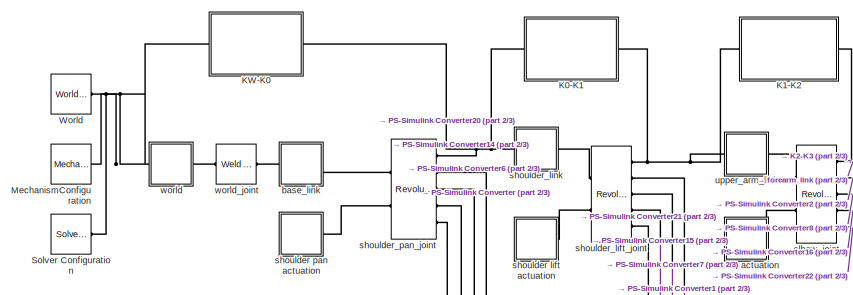
[diagram: root canvas - part 1/3, top left region]
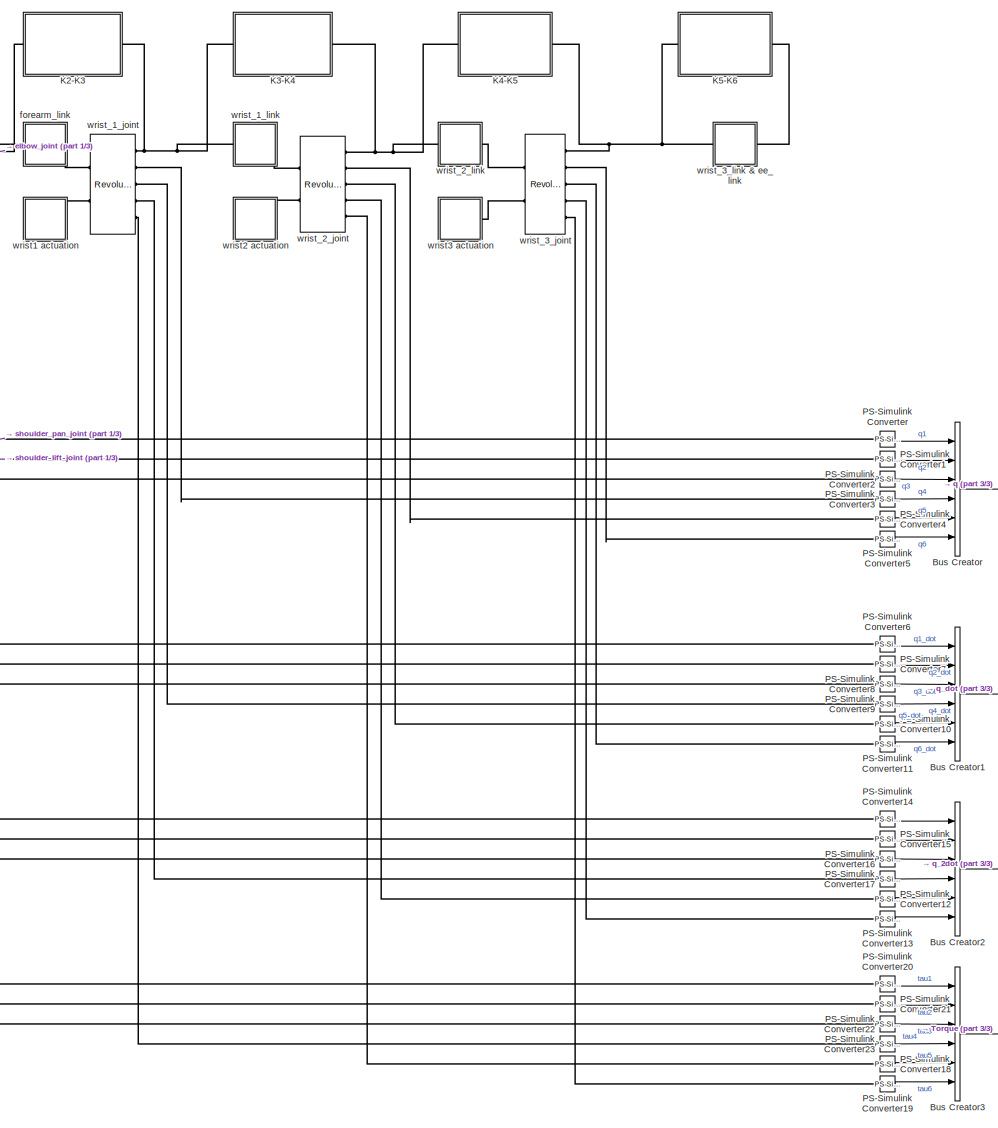
[diagram: root canvas - part 2/3, center side, full height]
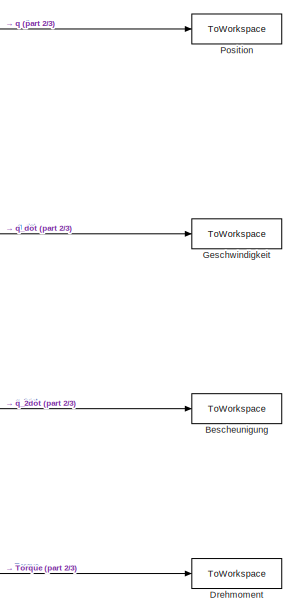
[diagram: root canvas - part 3/3, bottom right region]
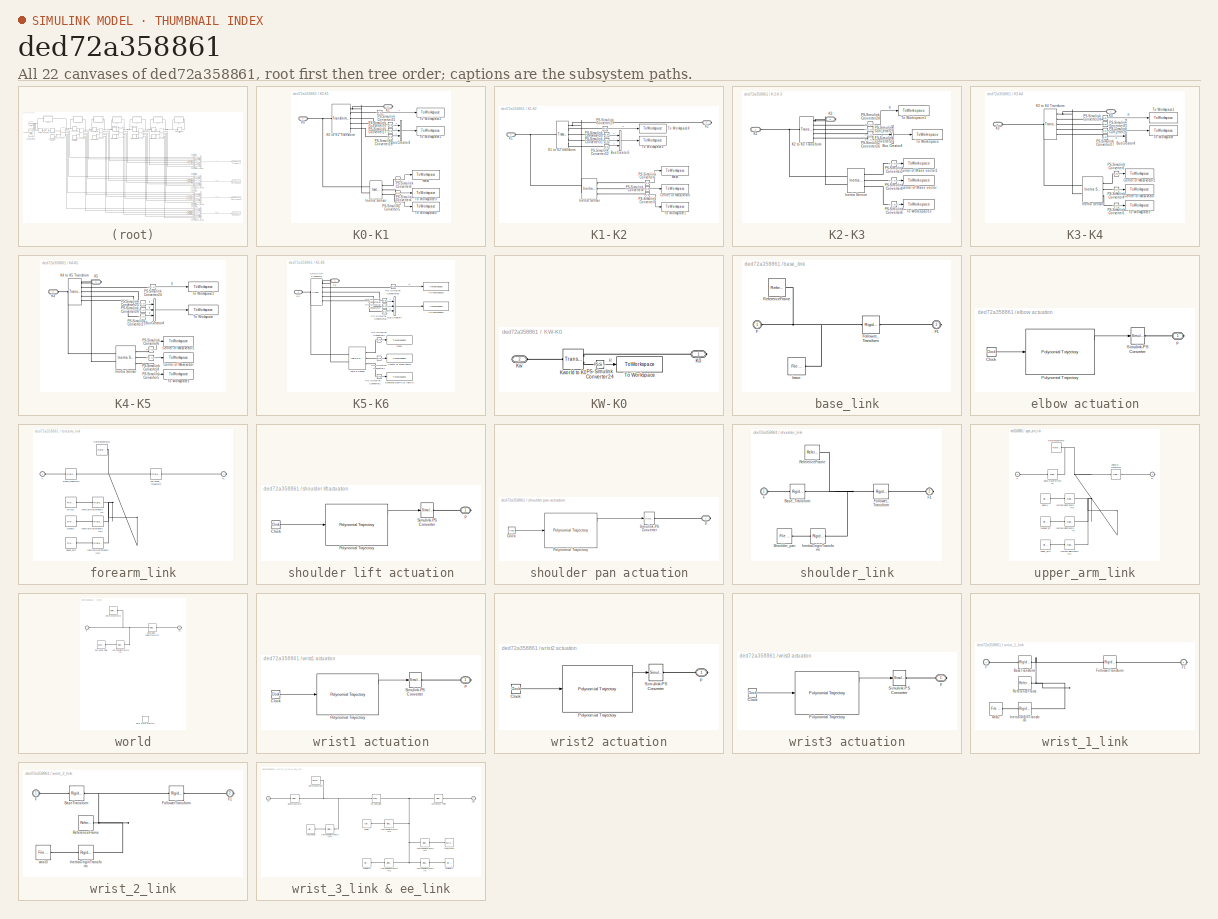
[diagram: thumbnail index - all 22 canvases of the model, root first then tree order]
MODEL slx_ded72a358861
KIND model
CONFIG AbsTol = auto
CONFIG EnableMultiTasking = off
CONFIG FixedStep = 0.001
CONFIG InitFcn = clear\nmodel_data\n
CONFIG MaxStep = auto
CONFIG MinStep = auto
CONFIG RelTol = 1e-3
CONFIG SampleTimeConstraint = Unconstrained
CONFIG SolverName = FixedStepAuto
CONFIG StartTime = 0.0
CONFIG StopFcn = compute_torques_with_newton_euler
CONFIG StopTime = 10
WORKSPACE source: mxarray member
WORKSPACE R_World_0 = 0
BLOCK [ToWorkspace] Bescheunigung
  FixptAsFi = on
  MaxDataPoints = inf
  Ports = [1]
  SampleTime = -1
  Save2DSignal = 2-D array (concatenate along first dimension)
  VariableName = q_2dot
BLOCK [BusCreator] Bus Creator
  DisplayOption = bar
  InheritFromInputs = on
  Inputs = 6
  Ports = [6, 1]
BLOCK [BusCreator] Bus Creator1
  DisplayOption = bar
  InheritFromInputs = on
  Inputs = 6
  Ports = [6, 1]
BLOCK [BusCreator] Bus Creator2
  DisplayOption = bar
  InheritFromInputs = on
  Inputs = 6
  Ports = [6, 1]
BLOCK [BusCreator] Bus Creator3
  DisplayOption = bar
  InheritFromInputs = on
  Inputs = 6
  Ports = [6, 1]
BLOCK [ToWorkspace] Drehmoment
  FixptAsFi = on
  MaxDataPoints = inf
  Ports = [1]
  SampleTime = -1
  Save2DSignal = 2-D array (concatenate along first dimension)
  VariableName = tau_sim
BLOCK [ToWorkspace] Geschwindigkeit
  FixptAsFi = on
  MaxDataPoints = inf
  Ports = [1]
  SampleTime = -1
  Save2DSignal = 2-D array (concatenate along first dimension)
  VariableName = q_dot
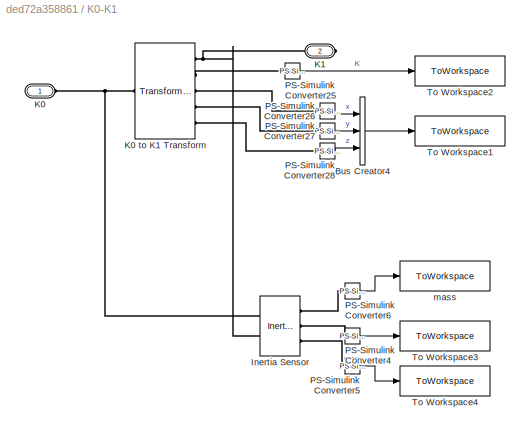
BLOCK [SubSystem] K0-K1
  Ports = [0, 0, 0, 0, 0, 1, 1]
  RequestExecContextInheritance = off
BLOCK [BusCreator] K0-K1/Bus Creator4
  DisplayOption = bar
  InheritFromInputs = on
  Inputs = 3
  Ports = [3, 1]
BLOCK [Reference] K0-K1/Inertia Sensor  REF=sm_lib/Body Elements/Inertia Sensor
  Ports = [0, 0, 0, 0, 0, 2, 3]
  SourceBlock = sm_lib/Body Elements/Inertia Sensor
  SourceProductBaseCode = MS
  SourceType = Inertia Sensor
BLOCK [PMIOPort] K0-K1/K0
  Side = Left
BLOCK [Reference] K0-K1/K0 to K1 Transform  REF=sm_lib/Frames and
Transforms/Transform
Sensor
  Ports = [0, 0, 0, 0, 0, 1, 5]
  SourceBlock = sm_lib/Frames and\nTransforms/Transform\nSensor
  SourceProductBaseCode = MS
  SourceType = Transform\nSensor
BLOCK [PMIOPort] K0-K1/K1
  Port = 2
  Side = Right
BLOCK [Reference] K0-K1/PS-Simulink Converter25  REF=nesl_utility/PS-Simulink
Converter
  Ports = [0, 1, 0, 0, 0, 1]
  SourceBlock = nesl_utility/PS-Simulink\nConverter
  SourceProductBaseCode = PW,SS
  SourceType = PS-Simulink\nConverter
BLOCK [Reference] K0-K1/PS-Simulink Converter26  REF=nesl_utility/PS-Simulink
Converter
  Ports = [0, 1, 0, 0, 0, 1]
  SourceBlock = nesl_utility/PS-Simulink\nConverter
  SourceProductBaseCode = PW,SS
  SourceType = PS-Simulink\nConverter
BLOCK [Reference] K0-K1/PS-Simulink Converter27  REF=nesl_utility/PS-Simulink
Converter
  Ports = [0, 1, 0, 0, 0, 1]
  SourceBlock = nesl_utility/PS-Simulink\nConverter
  SourceProductBaseCode = PW,SS
  SourceType = PS-Simulink\nConverter
BLOCK [Reference] K0-K1/PS-Simulink Converter28  REF=nesl_utility/PS-Simulink
Converter
  Ports = [0, 1, 0, 0, 0, 1]
  SourceBlock = nesl_utility/PS-Simulink\nConverter
  SourceProductBaseCode = PW,SS
  SourceType = PS-Simulink\nConverter
BLOCK [Reference] K0-K1/PS-Simulink Converter4  REF=nesl_utility/PS-Simulink
Converter
  Ports = [0, 1, 0, 0, 0, 1]
  SourceBlock = nesl_utility/PS-Simulink\nConverter
  SourceProductBaseCode = PW,SS
  SourceType = PS-Simulink\nConverter
BLOCK [Reference] K0-K1/PS-Simulink Converter5  REF=nesl_utility/PS-Simulink
Converter
  Ports = [0, 1, 0, 0, 0, 1]
  SourceBlock = nesl_utility/PS-Simulink\nConverter
  SourceProductBaseCode = PW,SS
  SourceType = PS-Simulink\nConverter
BLOCK [Reference] K0-K1/PS-Simulink Converter6  REF=nesl_utility/PS-Simulink
Converter
  Ports = [0, 1, 0, 0, 0, 1]
  SourceBlock = nesl_utility/PS-Simulink\nConverter
  SourceProductBaseCode = PW,SS
  SourceType = PS-Simulink\nConverter
BLOCK [ToWorkspace] K0-K1/To Workspace1
  FixptAsFi = on
  MaxDataPoints = inf
  Ports = [1]
  SampleTime = -1
  VariableName = p_01
BLOCK [ToWorkspace] K0-K1/To Workspace2
  FixptAsFi = on
  MaxDataPoints = inf
  Ports = [1]
  SampleTime = -1
  VariableName = R_01
BLOCK [ToWorkspace] K0-K1/To Workspace3
  FixptAsFi = on
  MaxDataPoints = inf
  Ports = [1]
  SampleTime = -1
  VariableName = s1
BLOCK [ToWorkspace] K0-K1/To Workspace4
  FixptAsFi = on
  MaxDataPoints = inf
  Ports = [1]
  SampleTime = -1
  VariableName = Ic_1
BLOCK [ToWorkspace] K0-K1/mass
  FixptAsFi = on
  MaxDataPoints = 1
  Ports = [1]
  SampleTime = -1
  Save2DSignal = 2-D array (concatenate along first dimension)
  VariableName = m1
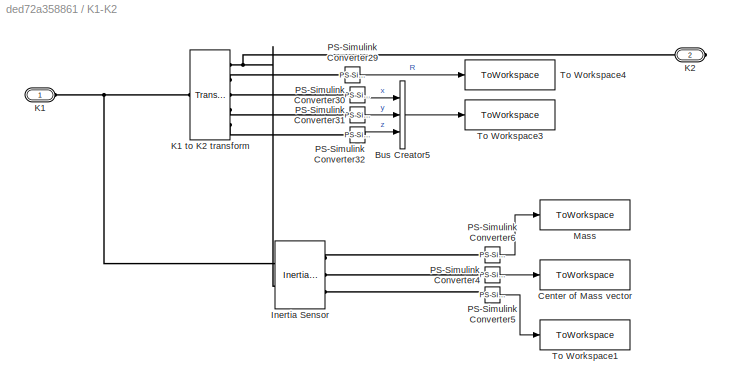
BLOCK [SubSystem] K1-K2
  Ports = [0, 0, 0, 0, 0, 1, 1]
  RequestExecContextInheritance = off
BLOCK [ToWorkspace] K1-K2/ Mass
  FixptAsFi = on
  MaxDataPoints = 1
  Ports = [1]
  SampleTime = -1
  Save2DSignal = 2-D array (concatenate along first dimension)
  VariableName = m2
BLOCK [BusCreator] K1-K2/Bus Creator5
  DisplayOption = bar
  InheritFromInputs = on
  Inputs = 3
  Ports = [3, 1]
BLOCK [ToWorkspace] K1-K2/Center of Mass vector
  FixptAsFi = on
  MaxDataPoints = inf
  Ports = [1]
  SampleTime = -1
  VariableName = s2
BLOCK [Reference] K1-K2/Inertia Sensor  REF=sm_lib/Body Elements/Inertia Sensor
  Ports = [0, 0, 0, 0, 0, 2, 3]
  SourceBlock = sm_lib/Body Elements/Inertia Sensor
  SourceProductBaseCode = MS
  SourceType = Inertia Sensor
BLOCK [PMIOPort] K1-K2/K1
  Side = Left
BLOCK [Reference] K1-K2/K1 to K2 transform  REF=sm_lib/Frames and
Transforms/Transform
Sensor
  Ports = [0, 0, 0, 0, 0, 1, 5]
  SourceBlock = sm_lib/Frames and\nTransforms/Transform\nSensor
  SourceProductBaseCode = MS
  SourceType = Transform\nSensor
BLOCK [PMIOPort] K1-K2/K2
  Port = 2
  Side = Right
BLOCK [Reference] K1-K2/PS-Simulink Converter29  REF=nesl_utility/PS-Simulink
Converter
  Ports = [0, 1, 0, 0, 0, 1]
  SourceBlock = nesl_utility/PS-Simulink\nConverter
  SourceProductBaseCode = PW,SS
  SourceType = PS-Simulink\nConverter
BLOCK [Reference] K1-K2/PS-Simulink Converter30  REF=nesl_utility/PS-Simulink
Converter
  Ports = [0, 1, 0, 0, 0, 1]
  SourceBlock = nesl_utility/PS-Simulink\nConverter
  SourceProductBaseCode = PW,SS
  SourceType = PS-Simulink\nConverter
BLOCK [Reference] K1-K2/PS-Simulink Converter31  REF=nesl_utility/PS-Simulink
Converter
  Ports = [0, 1, 0, 0, 0, 1]
  SourceBlock = nesl_utility/PS-Simulink\nConverter
  SourceProductBaseCode = PW,SS
  SourceType = PS-Simulink\nConverter
BLOCK [Reference] K1-K2/PS-Simulink Converter32  REF=nesl_utility/PS-Simulink
Converter
  Ports = [0, 1, 0, 0, 0, 1]
  SourceBlock = nesl_utility/PS-Simulink\nConverter
  SourceProductBaseCode = PW,SS
  SourceType = PS-Simulink\nConverter
BLOCK [Reference] K1-K2/PS-Simulink Converter4  REF=nesl_utility/PS-Simulink
Converter
  Ports = [0, 1, 0, 0, 0, 1]
  SourceBlock = nesl_utility/PS-Simulink\nConverter
  SourceProductBaseCode = PW,SS
  SourceType = PS-Simulink\nConverter
BLOCK [Reference] K1-K2/PS-Simulink Converter5  REF=nesl_utility/PS-Simulink
Converter
  Ports = [0, 1, 0, 0, 0, 1]
  SourceBlock = nesl_utility/PS-Simulink\nConverter
  SourceProductBaseCode = PW,SS
  SourceType = PS-Simulink\nConverter
BLOCK [Reference] K1-K2/PS-Simulink Converter6  REF=nesl_utility/PS-Simulink
Converter
  NameLocation = top
  Ports = [0, 1, 0, 0, 0, 1]
  SourceBlock = nesl_utility/PS-Simulink\nConverter
  SourceProductBaseCode = PW,SS
  SourceType = PS-Simulink\nConverter
BLOCK [ToWorkspace] K1-K2/To Workspace1
  FixptAsFi = on
  MaxDataPoints = inf
  Ports = [1]
  SampleTime = -1
  VariableName = Ic_2
BLOCK [ToWorkspace] K1-K2/To Workspace3
  FixptAsFi = on
  MaxDataPoints = inf
  Ports = [1]
  SampleTime = -1
  VariableName = p_12
BLOCK [ToWorkspace] K1-K2/To Workspace4
  FixptAsFi = on
  MaxDataPoints = inf
  Ports = [1]
  SampleTime = -1
  VariableName = R_12
BLOCK [SubSystem] K2-K3
  Ports = [0, 0, 0, 0, 0, 1, 1]
  RequestExecContextInheritance = off
BLOCK [BusCreator] K2-K3/Bus Creator4
  DisplayOption = bar
  InheritFromInputs = on
  Inputs = 3
  Ports = [3, 1]
BLOCK [ToWorkspace] K2-K3/Center of Mass vector
  FixptAsFi = on
  MaxDataPoints = inf
  Ports = [1]
  SampleTime = -1
  VariableName = s3
BLOCK [ToWorkspace] K2-K3/Center of Mass vector1
  FixptAsFi = on
  MaxDataPoints = 1
  Ports = [1]
  SampleTime = -1
  Save2DSignal = 2-D array (concatenate along first dimension)
  VariableName = m3
BLOCK [Reference] K2-K3/Inertia Sensor  REF=sm_lib/Body Elements/Inertia Sensor
  Ports = [0, 0, 0, 0, 0, 2, 3]
  SourceBlock = sm_lib/Body Elements/Inertia Sensor
  SourceProductBaseCode = MS
  SourceType = Inertia Sensor
BLOCK [PMIOPort] K2-K3/K2
  Side = Left
BLOCK [Reference] K2-K3/K2 to K3 Transform  REF=sm_lib/Frames and
Transforms/Transform
Sensor
  Ports = [0, 0, 0, 0, 0, 1, 5]
  SourceBlock = sm_lib/Frames and\nTransforms/Transform\nSensor
  SourceProductBaseCode = MS
  SourceType = Transform\nSensor
BLOCK [PMIOPort] K2-K3/K3
  NameLocation = top
  Port = 2
  Side = Right
BLOCK [Reference] K2-K3/PS-Simulink Converter24  REF=nesl_utility/PS-Simulink
Converter
  Ports = [0, 1, 0, 0, 0, 1]
  SourceBlock = nesl_utility/PS-Simulink\nConverter
  SourceProductBaseCode = PW,SS
  SourceType = PS-Simulink\nConverter
BLOCK [Reference] K2-K3/PS-Simulink Converter25  REF=nesl_utility/PS-Simulink
Converter
  Ports = [0, 1, 0, 0, 0, 1]
  SourceBlock = nesl_utility/PS-Simulink\nConverter
  SourceProductBaseCode = PW,SS
  SourceType = PS-Simulink\nConverter
BLOCK [Reference] K2-K3/PS-Simulink Converter26  REF=nesl_utility/PS-Simulink
Converter
  Ports = [0, 1, 0, 0, 0, 1]
  SourceBlock = nesl_utility/PS-Simulink\nConverter
  SourceProductBaseCode = PW,SS
  SourceType = PS-Simulink\nConverter
BLOCK [Reference] K2-K3/PS-Simulink Converter27  REF=nesl_utility/PS-Simulink
Converter
  Ports = [0, 1, 0, 0, 0, 1]
  SourceBlock = nesl_utility/PS-Simulink\nConverter
  SourceProductBaseCode = PW,SS
  SourceType = PS-Simulink\nConverter
BLOCK [Reference] K2-K3/PS-Simulink Converter4  REF=nesl_utility/PS-Simulink
Converter
  Ports = [0, 1, 0, 0, 0, 1]
  SourceBlock = nesl_utility/PS-Simulink\nConverter
  SourceProductBaseCode = PW,SS
  SourceType = PS-Simulink\nConverter
BLOCK [Reference] K2-K3/PS-Simulink Converter5  REF=nesl_utility/PS-Simulink
Converter
  Ports = [0, 1, 0, 0, 0, 1]
  SourceBlock = nesl_utility/PS-Simulink\nConverter
  SourceProductBaseCode = PW,SS
  SourceType = PS-Simulink\nConverter
BLOCK [Reference] K2-K3/PS-Simulink Converter6  REF=nesl_utility/PS-Simulink
Converter
  Ports = [0, 1, 0, 0, 0, 1]
  SourceBlock = nesl_utility/PS-Simulink\nConverter
  SourceProductBaseCode = PW,SS
  SourceType = PS-Simulink\nConverter
BLOCK [ToWorkspace] K2-K3/To Workspace
  FixptAsFi = on
  MaxDataPoints = inf
  Ports = [1]
  SampleTime = -1
  VariableName = p_23
BLOCK [ToWorkspace] K2-K3/To Workspace1
  FixptAsFi = on
  MaxDataPoints = inf
  Ports = [1]
  SampleTime = -1
  VariableName = R_23
BLOCK [ToWorkspace] K2-K3/To Workspace3
  FixptAsFi = on
  MaxDataPoints = inf
  Ports = [1]
  SampleTime = -1
  VariableName = Ic_3
BLOCK [SubSystem] K3-K4
  Ports = [0, 0, 0, 0, 0, 1, 1]
  RequestExecContextInheritance = off
BLOCK [BusCreator] K3-K4/Bus Creator4
  DisplayOption = bar
  InheritFromInputs = on
  Inputs = 3
  Ports = [3, 1]
BLOCK [ToWorkspace] K3-K4/Center of Mass vector
  FixptAsFi = on
  MaxDataPoints = inf
  Ports = [1]
  SampleTime = -1
  VariableName = s4
BLOCK [ToWorkspace] K3-K4/Center of Mass vector1
  FixptAsFi = on
  MaxDataPoints = 1
  Ports = [1]
  SampleTime = -1
  Save2DSignal = 2-D array (concatenate along first dimension)
  VariableName = m4
BLOCK [Reference] K3-K4/Inertia Sensor  REF=sm_lib/Body Elements/Inertia Sensor
  Ports = [0, 0, 0, 0, 0, 2, 3]
  SourceBlock = sm_lib/Body Elements/Inertia Sensor
  SourceProductBaseCode = MS
  SourceType = Inertia Sensor
BLOCK [PMIOPort] K3-K4/K3
  Port = 2
  Side = Left
BLOCK [Reference] K3-K4/K3 to K4 Transform  REF=sm_lib/Frames and
Transforms/Transform
Sensor
  Ports = [0, 0, 0, 0, 0, 1, 5]
  SourceBlock = sm_lib/Frames and\nTransforms/Transform\nSensor
  SourceProductBaseCode = MS
  SourceType = Transform\nSensor
BLOCK [PMIOPort] K3-K4/K4
  Side = Right
BLOCK [Reference] K3-K4/PS-Simulink Converter24  REF=nesl_utility/PS-Simulink
Converter
  Ports = [0, 1, 0, 0, 0, 1]
  SourceBlock = nesl_utility/PS-Simulink\nConverter
  SourceProductBaseCode = PW,SS
  SourceType = PS-Simulink\nConverter
BLOCK [Reference] K3-K4/PS-Simulink Converter25  REF=nesl_utility/PS-Simulink
Converter
  Ports = [0, 1, 0, 0, 0, 1]
  SourceBlock = nesl_utility/PS-Simulink\nConverter
  SourceProductBaseCode = PW,SS
  SourceType = PS-Simulink\nConverter
BLOCK [Reference] K3-K4/PS-Simulink Converter26  REF=nesl_utility/PS-Simulink
Converter
  Ports = [0, 1, 0, 0, 0, 1]
  SourceBlock = nesl_utility/PS-Simulink\nConverter
  SourceProductBaseCode = PW,SS
  SourceType = PS-Simulink\nConverter
BLOCK [Reference] K3-K4/PS-Simulink Converter27  REF=nesl_utility/PS-Simulink
Converter
  Ports = [0, 1, 0, 0, 0, 1]
  SourceBlock = nesl_utility/PS-Simulink\nConverter
  SourceProductBaseCode = PW,SS
  SourceType = PS-Simulink\nConverter
BLOCK [Reference] K3-K4/PS-Simulink Converter4  REF=nesl_utility/PS-Simulink
Converter
  Ports = [0, 1, 0, 0, 0, 1]
  SourceBlock = nesl_utility/PS-Simulink\nConverter
  SourceProductBaseCode = PW,SS
  SourceType = PS-Simulink\nConverter
BLOCK [Reference] K3-K4/PS-Simulink Converter5  REF=nesl_utility/PS-Simulink
Converter
  Ports = [0, 1, 0, 0, 0, 1]
  SourceBlock = nesl_utility/PS-Simulink\nConverter
  SourceProductBaseCode = PW,SS
  SourceType = PS-Simulink\nConverter
BLOCK [Reference] K3-K4/PS-Simulink Converter6  REF=nesl_utility/PS-Simulink
Converter
  Ports = [0, 1, 0, 0, 0, 1]
  SourceBlock = nesl_utility/PS-Simulink\nConverter
  SourceProductBaseCode = PW,SS
  SourceType = PS-Simulink\nConverter
BLOCK [ToWorkspace] K3-K4/To Workspace
  FixptAsFi = on
  MaxDataPoints = inf
  Ports = [1]
  SampleTime = -1
  VariableName = p_34
BLOCK [ToWorkspace] K3-K4/To Workspace1
  FixptAsFi = on
  MaxDataPoints = inf
  Ports = [1]
  SampleTime = -1
  VariableName = R_34
BLOCK [ToWorkspace] K3-K4/To Workspace3
  FixptAsFi = on
  MaxDataPoints = inf
  Ports = [1]
  SampleTime = -1
  VariableName = Ic_4
BLOCK [SubSystem] K4-K5
  Ports = [0, 0, 0, 0, 0, 1, 1]
  RequestExecContextInheritance = off
BLOCK [BusCreator] K4-K5/Bus Creator4
  DisplayOption = bar
  InheritFromInputs = on
  Inputs = 3
  Ports = [3, 1]
BLOCK [ToWorkspace] K4-K5/Center of Mass vector
  FixptAsFi = on
  MaxDataPoints = inf
  Ports = [1]
  SampleTime = -1
  VariableName = s5
BLOCK [ToWorkspace] K4-K5/Center of Mass vector1
  FixptAsFi = on
  MaxDataPoints = 1
  Ports = [1]
  SampleTime = -1
  Save2DSignal = 2-D array (concatenate along first dimension)
  VariableName = m5
BLOCK [Reference] K4-K5/Inertia Sensor  REF=sm_lib/Body Elements/Inertia Sensor
  Ports = [0, 0, 0, 0, 0, 2, 3]
  SourceBlock = sm_lib/Body Elements/Inertia Sensor
  SourceProductBaseCode = MS
  SourceType = Inertia Sensor
BLOCK [PMIOPort] K4-K5/K4
  Port = 2
  Side = Left
BLOCK [Reference] K4-K5/K4 to K5 Transform  REF=sm_lib/Frames and
Transforms/Transform
Sensor
  Ports = [0, 0, 0, 0, 0, 1, 5]
  SourceBlock = sm_lib/Frames and\nTransforms/Transform\nSensor
  SourceProductBaseCode = MS
  SourceType = Transform\nSensor
BLOCK [PMIOPort] K4-K5/K5
  NameLocation = top
  Side = Right
BLOCK [Reference] K4-K5/PS-Simulink Converter24  REF=nesl_utility/PS-Simulink
Converter
  Ports = [0, 1, 0, 0, 0, 1]
  SourceBlock = nesl_utility/PS-Simulink\nConverter
  SourceProductBaseCode = PW,SS
  SourceType = PS-Simulink\nConverter
BLOCK [Reference] K4-K5/PS-Simulink Converter25  REF=nesl_utility/PS-Simulink
Converter
  Ports = [0, 1, 0, 0, 0, 1]
  SourceBlock = nesl_utility/PS-Simulink\nConverter
  SourceProductBaseCode = PW,SS
  SourceType = PS-Simulink\nConverter
BLOCK [Reference] K4-K5/PS-Simulink Converter26  REF=nesl_utility/PS-Simulink
Converter
  Ports = [0, 1, 0, 0, 0, 1]
  SourceBlock = nesl_utility/PS-Simulink\nConverter
  SourceProductBaseCode = PW,SS
  SourceType = PS-Simulink\nConverter
BLOCK [Reference] K4-K5/PS-Simulink Converter27  REF=nesl_utility/PS-Simulink
Converter
  Ports = [0, 1, 0, 0, 0, 1]
  SourceBlock = nesl_utility/PS-Simulink\nConverter
  SourceProductBaseCode = PW,SS
  SourceType = PS-Simulink\nConverter
BLOCK [Reference] K4-K5/PS-Simulink Converter4  REF=nesl_utility/PS-Simulink
Converter
  Ports = [0, 1, 0, 0, 0, 1]
  SourceBlock = nesl_utility/PS-Simulink\nConverter
  SourceProductBaseCode = PW,SS
  SourceType = PS-Simulink\nConverter
BLOCK [Reference] K4-K5/PS-Simulink Converter5  REF=nesl_utility/PS-Simulink
Converter
  Ports = [0, 1, 0, 0, 0, 1]
  SourceBlock = nesl_utility/PS-Simulink\nConverter
  SourceProductBaseCode = PW,SS
  SourceType = PS-Simulink\nConverter
BLOCK [Reference] K4-K5/PS-Simulink Converter6  REF=nesl_utility/PS-Simulink
Converter
  Ports = [0, 1, 0, 0, 0, 1]
  SourceBlock = nesl_utility/PS-Simulink\nConverter
  SourceProductBaseCode = PW,SS
  SourceType = PS-Simulink\nConverter
BLOCK [ToWorkspace] K4-K5/To Workspace
  FixptAsFi = on
  MaxDataPoints = inf
  Ports = [1]
  SampleTime = -1
  VariableName = p_45
BLOCK [ToWorkspace] K4-K5/To Workspace1
  FixptAsFi = on
  MaxDataPoints = inf
  Ports = [1]
  SampleTime = -1
  VariableName = R_45
BLOCK [ToWorkspace] K4-K5/To Workspace3
  FixptAsFi = on
  MaxDataPoints = inf
  Ports = [1]
  SampleTime = -1
  VariableName = Ic_5
BLOCK [SubSystem] K5-K6
  Ports = [0, 0, 0, 0, 0, 1, 1]
  RequestExecContextInheritance = off
BLOCK [BusCreator] K5-K6/Bus Creator4
  DisplayOption = bar
  InheritFromInputs = on
  Inputs = 3
  Ports = [3, 1]
BLOCK [ToWorkspace] K5-K6/Center of Mass vector
  FixptAsFi = on
  MaxDataPoints = inf
  Ports = [1]
  SampleTime = -1
  VariableName = s6
BLOCK [ToWorkspace] K5-K6/Centered Matrix of Inertia
  FixptAsFi = on
  MaxDataPoints = inf
  Ports = [1]
  SampleTime = -1
  VariableName = Ic_6
BLOCK [Reference] K5-K6/Inertia Sensor  REF=sm_lib/Body Elements/Inertia Sensor
  Ports = [0, 0, 0, 0, 0, 2, 3]
  SourceBlock = sm_lib/Body Elements/Inertia Sensor
  SourceProductBaseCode = MS
  SourceType = Inertia Sensor
BLOCK [PMIOPort] K5-K6/K5
  Port = 2
  Side = Left
BLOCK [Reference] K5-K6/K5 to TCP Transform   REF=sm_lib/Frames and
Transforms/Transform
Sensor
  Ports = [0, 0, 0, 0, 0, 1, 5]
  SourceBlock = sm_lib/Frames and\nTransforms/Transform\nSensor
  SourceProductBaseCode = MS
  SourceType = Transform\nSensor
BLOCK [PMIOPort] K5-K6/K6
  Side = Right
BLOCK [Reference] K5-K6/PS-Simulink Converter1  REF=nesl_utility/PS-Simulink
Converter
  Ports = [0, 1, 0, 0, 0, 1]
  SourceBlock = nesl_utility/PS-Simulink\nConverter
  SourceProductBaseCode = PW,SS
  SourceType = PS-Simulink\nConverter
BLOCK [Reference] K5-K6/PS-Simulink Converter2  REF=nesl_utility/PS-Simulink
Converter
  Ports = [0, 1, 0, 0, 0, 1]
  SourceBlock = nesl_utility/PS-Simulink\nConverter
  SourceProductBaseCode = PW,SS
  SourceType = PS-Simulink\nConverter
BLOCK [Reference] K5-K6/PS-Simulink Converter25  REF=nesl_utility/PS-Simulink
Converter
  Ports = [0, 1, 0, 0, 0, 1]
  SourceBlock = nesl_utility/PS-Simulink\nConverter
  SourceProductBaseCode = PW,SS
  SourceType = PS-Simulink\nConverter
BLOCK [Reference] K5-K6/PS-Simulink Converter26  REF=nesl_utility/PS-Simulink
Converter
  Ports = [0, 1, 0, 0, 0, 1]
  SourceBlock = nesl_utility/PS-Simulink\nConverter
  SourceProductBaseCode = PW,SS
  SourceType = PS-Simulink\nConverter
BLOCK [Reference] K5-K6/PS-Simulink Converter27  REF=nesl_utility/PS-Simulink
Converter
  Ports = [0, 1, 0, 0, 0, 1]
  SourceBlock = nesl_utility/PS-Simulink\nConverter
  SourceProductBaseCode = PW,SS
  SourceType = PS-Simulink\nConverter
BLOCK [Reference] K5-K6/PS-Simulink Converter28  REF=nesl_utility/PS-Simulink
Converter
  Ports = [0, 1, 0, 0, 0, 1]
  SourceBlock = nesl_utility/PS-Simulink\nConverter
  SourceProductBaseCode = PW,SS
  SourceType = PS-Simulink\nConverter
BLOCK [Reference] K5-K6/PS-Simulink Converter4  REF=nesl_utility/PS-Simulink
Converter
  Ports = [0, 1, 0, 0, 0, 1]
  SourceBlock = nesl_utility/PS-Simulink\nConverter
  SourceProductBaseCode = PW,SS
  SourceType = PS-Simulink\nConverter
BLOCK [ToWorkspace] K5-K6/To Workspace1
  FixptAsFi = on
  MaxDataPoints = inf
  Ports = [1]
  SampleTime = -1
  VariableName = p_56
BLOCK [ToWorkspace] K5-K6/To Workspace2
  FixptAsFi = on
  MaxDataPoints = inf
  Ports = [1]
  SampleTime = -1
  VariableName = R_56
BLOCK [ToWorkspace] K5-K6/mass
  FixptAsFi = on
  MaxDataPoints = 1
  Ports = [1]
  SampleTime = -1
  Save2DSignal = 2-D array (concatenate along first dimension)
  VariableName = m6
BLOCK [SubSystem] KW-K0
  Ports = [0, 0, 0, 0, 0, 1, 1]
  RequestExecContextInheritance = off
BLOCK [PMIOPort] KW-K0/K0
  Side = Right
BLOCK [PMIOPort] KW-K0/Kw
  Port = 2
  Side = Left
BLOCK [Reference] KW-K0/Kworld to K0  REF=sm_lib/Frames and
Transforms/Transform
Sensor
  Ports = [0, 0, 0, 0, 0, 1, 2]
  SourceBlock = sm_lib/Frames and\nTransforms/Transform\nSensor
  SourceProductBaseCode = MS
  SourceType = Transform\nSensor
BLOCK [Reference] KW-K0/PS-Simulink Converter24  REF=nesl_utility/PS-Simulink
Converter
  Ports = [0, 1, 0, 0, 0, 1]
  SourceBlock = nesl_utility/PS-Simulink\nConverter
  SourceProductBaseCode = PW,SS
  SourceType = PS-Simulink\nConverter
BLOCK [ToWorkspace] KW-K0/To Workspace
  FixptAsFi = on
  MaxDataPoints = inf
  Ports = [1]
  SampleTime = -1
  VariableName = R_W0
BLOCK [Reference] MechanismConfiguration  REF=sm_lib/Utilities/Mechanism
Configuration
  Ports = [0, 0, 0, 0, 0, 0, 1]
  SourceBlock = sm_lib/Utilities/Mechanism\nConfiguration
  SourceProductBaseCode = MS
  SourceType = Mechanism\nConfiguration
BLOCK [Reference] PS-Simulink Converter  REF=nesl_utility/PS-Simulink
Converter
  Ports = [0, 1, 0, 0, 0, 1]
  SourceBlock = nesl_utility/PS-Simulink\nConverter
  SourceProductBaseCode = PW,SS
  SourceType = PS-Simulink\nConverter
BLOCK [Reference] PS-Simulink Converter1  REF=nesl_utility/PS-Simulink
Converter
  Ports = [0, 1, 0, 0, 0, 1]
  SourceBlock = nesl_utility/PS-Simulink\nConverter
  SourceProductBaseCode = PW,SS
  SourceType = PS-Simulink\nConverter
BLOCK [Reference] PS-Simulink Converter10  REF=nesl_utility/PS-Simulink
Converter
  Ports = [0, 1, 0, 0, 0, 1]
  SourceBlock = nesl_utility/PS-Simulink\nConverter
  SourceProductBaseCode = PW,SS
  SourceType = PS-Simulink\nConverter
BLOCK [Reference] PS-Simulink Converter11  REF=nesl_utility/PS-Simulink
Converter
  Ports = [0, 1, 0, 0, 0, 1]
  SourceBlock = nesl_utility/PS-Simulink\nConverter
  SourceProductBaseCode = PW,SS
  SourceType = PS-Simulink\nConverter
BLOCK [Reference] PS-Simulink Converter12  REF=nesl_utility/PS-Simulink
Converter
  Ports = [0, 1, 0, 0, 0, 1]
  SourceBlock = nesl_utility/PS-Simulink\nConverter
  SourceProductBaseCode = PW,SS
  SourceType = PS-Simulink\nConverter
BLOCK [Reference] PS-Simulink Converter13  REF=nesl_utility/PS-Simulink
Converter
  Ports = [0, 1, 0, 0, 0, 1]
  SourceBlock = nesl_utility/PS-Simulink\nConverter
  SourceProductBaseCode = PW,SS
  SourceType = PS-Simulink\nConverter
BLOCK [Reference] PS-Simulink Converter14  REF=nesl_utility/PS-Simulink
Converter
  Ports = [0, 1, 0, 0, 0, 1]
  SourceBlock = nesl_utility/PS-Simulink\nConverter
  SourceProductBaseCode = PW,SS
  SourceType = PS-Simulink\nConverter
BLOCK [Reference] PS-Simulink Converter15  REF=nesl_utility/PS-Simulink
Converter
  Ports = [0, 1, 0, 0, 0, 1]
  SourceBlock = nesl_utility/PS-Simulink\nConverter
  SourceProductBaseCode = PW,SS
  SourceType = PS-Simulink\nConverter
BLOCK [Reference] PS-Simulink Converter16  REF=nesl_utility/PS-Simulink
Converter
  Ports = [0, 1, 0, 0, 0, 1]
  SourceBlock = nesl_utility/PS-Simulink\nConverter
  SourceProductBaseCode = PW,SS
  SourceType = PS-Simulink\nConverter
BLOCK [Reference] PS-Simulink Converter17  REF=nesl_utility/PS-Simulink
Converter
  Ports = [0, 1, 0, 0, 0, 1]
  SourceBlock = nesl_utility/PS-Simulink\nConverter
  SourceProductBaseCode = PW,SS
  SourceType = PS-Simulink\nConverter
BLOCK [Reference] PS-Simulink Converter18  REF=nesl_utility/PS-Simulink
Converter
  Ports = [0, 1, 0, 0, 0, 1]
  SourceBlock = nesl_utility/PS-Simulink\nConverter
  SourceProductBaseCode = PW,SS
  SourceType = PS-Simulink\nConverter
BLOCK [Reference] PS-Simulink Converter19  REF=nesl_utility/PS-Simulink
Converter
  Ports = [0, 1, 0, 0, 0, 1]
  SourceBlock = nesl_utility/PS-Simulink\nConverter
  SourceProductBaseCode = PW,SS
  SourceType = PS-Simulink\nConverter
BLOCK [Reference] PS-Simulink Converter2  REF=nesl_utility/PS-Simulink
Converter
  Ports = [0, 1, 0, 0, 0, 1]
  SourceBlock = nesl_utility/PS-Simulink\nConverter
  SourceProductBaseCode = PW,SS
  SourceType = PS-Simulink\nConverter
BLOCK [Reference] PS-Simulink Converter20  REF=nesl_utility/PS-Simulink
Converter
  Ports = [0, 1, 0, 0, 0, 1]
  SourceBlock = nesl_utility/PS-Simulink\nConverter
  SourceProductBaseCode = PW,SS
  SourceType = PS-Simulink\nConverter
BLOCK [Reference] PS-Simulink Converter21  REF=nesl_utility/PS-Simulink
Converter
  Ports = [0, 1, 0, 0, 0, 1]
  SourceBlock = nesl_utility/PS-Simulink\nConverter
  SourceProductBaseCode = PW,SS
  SourceType = PS-Simulink\nConverter
BLOCK [Reference] PS-Simulink Converter22  REF=nesl_utility/PS-Simulink
Converter
  Ports = [0, 1, 0, 0, 0, 1]
  SourceBlock = nesl_utility/PS-Simulink\nConverter
  SourceProductBaseCode = PW,SS
  SourceType = PS-Simulink\nConverter
BLOCK [Reference] PS-Simulink Converter23  REF=nesl_utility/PS-Simulink
Converter
  Ports = [0, 1, 0, 0, 0, 1]
  SourceBlock = nesl_utility/PS-Simulink\nConverter
  SourceProductBaseCode = PW,SS
  SourceType = PS-Simulink\nConverter
BLOCK [Reference] PS-Simulink Converter3  REF=nesl_utility/PS-Simulink
Converter
  Ports = [0, 1, 0, 0, 0, 1]
  SourceBlock = nesl_utility/PS-Simulink\nConverter
  SourceProductBaseCode = PW,SS
  SourceType = PS-Simulink\nConverter
BLOCK [Reference] PS-Simulink Converter4  REF=nesl_utility/PS-Simulink
Converter
  Ports = [0, 1, 0, 0, 0, 1]
  SourceBlock = nesl_utility/PS-Simulink\nConverter
  SourceProductBaseCode = PW,SS
  SourceType = PS-Simulink\nConverter
BLOCK [Reference] PS-Simulink Converter5  REF=nesl_utility/PS-Simulink
Converter
  Ports = [0, 1, 0, 0, 0, 1]
  SourceBlock = nesl_utility/PS-Simulink\nConverter
  SourceProductBaseCode = PW,SS
  SourceType = PS-Simulink\nConverter
BLOCK [Reference] PS-Simulink Converter6  REF=nesl_utility/PS-Simulink
Converter
  Ports = [0, 1, 0, 0, 0, 1]
  SourceBlock = nesl_utility/PS-Simulink\nConverter
  SourceProductBaseCode = PW,SS
  SourceType = PS-Simulink\nConverter
BLOCK [Reference] PS-Simulink Converter7  REF=nesl_utility/PS-Simulink
Converter
  Ports = [0, 1, 0, 0, 0, 1]
  SourceBlock = nesl_utility/PS-Simulink\nConverter
  SourceProductBaseCode = PW,SS
  SourceType = PS-Simulink\nConverter
BLOCK [Reference] PS-Simulink Converter8  REF=nesl_utility/PS-Simulink
Converter
  Ports = [0, 1, 0, 0, 0, 1]
  SourceBlock = nesl_utility/PS-Simulink\nConverter
  SourceProductBaseCode = PW,SS
  SourceType = PS-Simulink\nConverter
BLOCK [Reference] PS-Simulink Converter9  REF=nesl_utility/PS-Simulink
Converter
  Ports = [0, 1, 0, 0, 0, 1]
  SourceBlock = nesl_utility/PS-Simulink\nConverter
  SourceProductBaseCode = PW,SS
  SourceType = PS-Simulink\nConverter
BLOCK [ToWorkspace] Position
  FixptAsFi = on
  MaxDataPoints = inf
  Ports = [1]
  SampleTime = -1
  Save2DSignal = 2-D array (concatenate along first dimension)
  VariableName = q
BLOCK [Reference] Solver Configuration  REF=nesl_utility/Solver
Configuration
  Ports = [0, 0, 0, 0, 0, 0, 1]
  SourceBlock = nesl_utility/Solver\nConfiguration
  SourceProductBaseCode = PW,SS
  SourceType = Solver\nConfiguration
BLOCK [Reference] World  REF=sm_lib/Frames and
Transforms/World Frame
  Ports = [0, 0, 0, 0, 0, 0, 1]
  SourceBlock = sm_lib/Frames and\nTransforms/World Frame
  SourceProductBaseCode = MS
  SourceType = World Frame
BLOCK [SubSystem] base_link
  Ports = [0, 0, 0, 0, 0, 1, 1]
  RequestExecContextInheritance = off
BLOCK [PMIOPort] base_link/F
  Side = Left
BLOCK [PMIOPort] base_link/F1
  Port = 2
  Side = Right
BLOCK [Reference] base_link/Follower_Transform  REF=sm_lib/Frames and
Transforms/Rigid
Transform
  Ports = [0, 0, 0, 0, 0, 1, 1]
  SourceBlock = sm_lib/Frames and\nTransforms/Rigid\nTransform
  SourceProductBaseCode = MS
  SourceType = Rigid\nTransform
BLOCK [Reference] base_link/ReferenceFrame  REF=sm_lib/Frames and
Transforms/Reference
Frame
  Ports = [0, 0, 0, 0, 0, 0, 1]
  SourceBlock = sm_lib/Frames and\nTransforms/Reference\nFrame
  SourceProductBaseCode = MS
  SourceType = Reference\nFrame
BLOCK [Reference] base_link/base  REF=sm_lib/Body Elements/File Solid
  Ports = [0, 0, 0, 0, 0, 0, 1]
  SourceBlock = sm_lib/Body Elements/File Solid
  SourceProductBaseCode = MS
  SourceType = File Solid
BLOCK [SubSystem] elbow actuation
  Ports = [0, 0, 0, 0, 0, 0, 1]
  RequestExecContextInheritance = off
BLOCK [Clock] elbow actuation/Clock
BLOCK [Reference] elbow actuation/Polynomial Trajectory  REF=robotcorelib/Polynomial Trajectory
  Ports = [1, 3]
  SourceBlock = robotcorelib/Polynomial Trajectory
  SourceProductBaseCode = NV,RO,RR,UV
  SourceType = robotics.slcore.internal.block.PolyTrajSys
BLOCK [Reference] elbow actuation/Simulink-PS Converter  REF=nesl_utility/Simulink-PS
Converter
  Ports = [1, 0, 0, 0, 0, 0, 1]
  SourceBlock = nesl_utility/Simulink-PS\nConverter
  SourceProductBaseCode = PW,SS
  SourceType = Simulink-PS\nConverter
BLOCK [PMIOPort] elbow actuation/p
  Side = Right
BLOCK [Reference] elbow_joint  REF=sm_lib/Joints/Revolute Joint
  Ports = [0, 0, 0, 0, 0, 2, 5]
  SourceBlock = sm_lib/Joints/Revolute Joint
  SourceProductBaseCode = MS
  SourceType = Revolute Joint
BLOCK [SubSystem] forearm_link
  Ports = [0, 0, 0, 0, 0, 1, 1]
  RequestExecContextInheritance = off
BLOCK [Reference] forearm_link/Base_Transform  REF=sm_lib/Frames and
Transforms/Rigid
Transform
  Ports = [0, 0, 0, 0, 0, 1, 1]
  SourceBlock = sm_lib/Frames and\nTransforms/Rigid\nTransform
  SourceProductBaseCode = MS
  SourceType = Rigid\nTransform
BLOCK [PMIOPort] forearm_link/F
  Side = Left
BLOCK [PMIOPort] forearm_link/F1
  Port = 2
  Side = Right
BLOCK [Reference] forearm_link/Follower_Transform  REF=sm_lib/Frames and
Transforms/Rigid
Transform
  Ports = [0, 0, 0, 0, 0, 1, 1]
  SourceBlock = sm_lib/Frames and\nTransforms/Rigid\nTransform
  SourceProductBaseCode = MS
  SourceType = Rigid\nTransform
BLOCK [Reference] forearm_link/InertiaOriginTransform  REF=sm_lib/Frames and
Transforms/Rigid
Transform
  Ports = [0, 0, 0, 0, 0, 1, 1]
  SourceBlock = sm_lib/Frames and\nTransforms/Rigid\nTransform
  SourceProductBaseCode = MS
  SourceType = Rigid\nTransform
BLOCK [Reference] forearm_link/InertiaOriginTransform1  REF=sm_lib/Frames and
Transforms/Rigid
Transform
  Ports = [0, 0, 0, 0, 0, 1, 1]
  SourceBlock = sm_lib/Frames and\nTransforms/Rigid\nTransform
  SourceProductBaseCode = MS
  SourceType = Rigid\nTransform
BLOCK [Reference] forearm_link/InertiaOriginTransform2  REF=sm_lib/Frames and
Transforms/Rigid
Transform
  Ports = [0, 0, 0, 0, 0, 1, 1]
  SourceBlock = sm_lib/Frames and\nTransforms/Rigid\nTransform
  SourceProductBaseCode = MS
  SourceType = Rigid\nTransform
BLOCK [Reference] forearm_link/ReferenceFrame  REF=sm_lib/Frames and
Transforms/Reference
Frame
  Ports = [0, 0, 0, 0, 0, 0, 1]
  SourceBlock = sm_lib/Frames and\nTransforms/Reference\nFrame
  SourceProductBaseCode = MS
  SourceType = Reference\nFrame
BLOCK [Reference] forearm_link/elbow2  REF=sm_lib/Body Elements/File Solid
  Ports = [0, 0, 0, 0, 0, 0, 1]
  SourceBlock = sm_lib/Body Elements/File Solid
  SourceProductBaseCode = MS
  SourceType = File Solid
BLOCK [Reference] forearm_link/upper_arm  REF=sm_lib/Body Elements/File Solid
  Ports = [0, 0, 0, 0, 0, 0, 1]
  SourceBlock = sm_lib/Body Elements/File Solid
  SourceProductBaseCode = MS
  SourceType = File Solid
BLOCK [Reference] forearm_link/wrist1  REF=sm_lib/Body Elements/File Solid
  Ports = [0, 0, 0, 0, 0, 0, 1]
  SourceBlock = sm_lib/Body Elements/File Solid
  SourceProductBaseCode = MS
  SourceType = File Solid
BLOCK [SubSystem] shoulder lift actuation
  Ports = [0, 0, 0, 0, 0, 0, 1]
  RequestExecContextInheritance = off
BLOCK [Clock] shoulder lift actuation/Clock
BLOCK [Reference] shoulder lift actuation/Polynomial Trajectory  REF=robotcorelib/Polynomial Trajectory
  Ports = [1, 3]
  SourceBlock = robotcorelib/Polynomial Trajectory
  SourceProductBaseCode = NV,RO,RR,UV
  SourceType = robotics.slcore.internal.block.PolyTrajSys
BLOCK [Reference] shoulder lift actuation/Simulink-PS Converter  REF=nesl_utility/Simulink-PS
Converter
  Ports = [1, 0, 0, 0, 0, 0, 1]
  SourceBlock = nesl_utility/Simulink-PS\nConverter
  SourceProductBaseCode = PW,SS
  SourceType = Simulink-PS\nConverter
BLOCK [PMIOPort] shoulder lift actuation/p
  Side = Right
BLOCK [SubSystem] shoulder pan actuation
  Ports = [0, 0, 0, 0, 0, 0, 1]
  RequestExecContextInheritance = off
BLOCK [Clock] shoulder pan actuation/Clock
BLOCK [Reference] shoulder pan actuation/Polynomial Trajectory  REF=robotcorelib/Polynomial Trajectory
  Ports = [1, 3]
  SourceBlock = robotcorelib/Polynomial Trajectory
  SourceProductBaseCode = NV,RO,RR,UV
  SourceType = robotics.slcore.internal.block.PolyTrajSys
BLOCK [Reference] shoulder pan actuation/Simulink-PS Converter  REF=nesl_utility/Simulink-PS
Converter
  Ports = [1, 0, 0, 0, 0, 0, 1]
  SourceBlock = nesl_utility/Simulink-PS\nConverter
  SourceProductBaseCode = PW,SS
  SourceType = Simulink-PS\nConverter
BLOCK [PMIOPort] shoulder pan actuation/p
  Side = Right
BLOCK [Reference] shoulder_lift_joint  REF=sm_lib/Joints/Revolute Joint
  Ports = [0, 0, 0, 0, 0, 2, 5]
  SourceBlock = sm_lib/Joints/Revolute Joint
  SourceProductBaseCode = MS
  SourceType = Revolute Joint
BLOCK [SubSystem] shoulder_link
  Ports = [0, 0, 0, 0, 0, 1, 1]
  RequestExecContextInheritance = off
BLOCK [Reference] shoulder_link/Base_Transform  REF=sm_lib/Frames and
Transforms/Rigid
Transform
  Ports = [0, 0, 0, 0, 0, 1, 1]
  SourceBlock = sm_lib/Frames and\nTransforms/Rigid\nTransform
  SourceProductBaseCode = MS
  SourceType = Rigid\nTransform
BLOCK [PMIOPort] shoulder_link/F
  Side = Left
BLOCK [PMIOPort] shoulder_link/F1
  Port = 2
  Side = Right
BLOCK [Reference] shoulder_link/Follower_Transform  REF=sm_lib/Frames and
Transforms/Rigid
Transform
  Ports = [0, 0, 0, 0, 0, 1, 1]
  SourceBlock = sm_lib/Frames and\nTransforms/Rigid\nTransform
  SourceProductBaseCode = MS
  SourceType = Rigid\nTransform
BLOCK [Reference] shoulder_link/InertiaOriginTransform  REF=sm_lib/Frames and
Transforms/Rigid
Transform
  Ports = [0, 0, 0, 0, 0, 1, 1]
  SourceBlock = sm_lib/Frames and\nTransforms/Rigid\nTransform
  SourceProductBaseCode = MS
  SourceType = Rigid\nTransform
BLOCK [Reference] shoulder_link/ReferenceFrame  REF=sm_lib/Frames and
Transforms/Reference
Frame
  Ports = [0, 0, 0, 0, 0, 0, 1]
  SourceBlock = sm_lib/Frames and\nTransforms/Reference\nFrame
  SourceProductBaseCode = MS
  SourceType = Reference\nFrame
BLOCK [Reference] shoulder_link/Shoulder_pan  REF=sm_lib/Body Elements/File Solid
  Ports = [0, 0, 0, 0, 0, 0, 1]
  SourceBlock = sm_lib/Body Elements/File Solid
  SourceProductBaseCode = MS
  SourceType = File Solid
BLOCK [Reference] shoulder_pan_joint  REF=sm_lib/Joints/Revolute Joint
  Ports = [0, 0, 0, 0, 0, 2, 5]
  SourceBlock = sm_lib/Joints/Revolute Joint
  SourceProductBaseCode = MS
  SourceType = Revolute Joint
BLOCK [SubSystem] upper_arm_link
  Ports = [0, 0, 0, 0, 0, 1, 1]
  RequestExecContextInheritance = off
BLOCK [Reference] upper_arm_link/Base_Transformation  REF=sm_lib/Frames and
Transforms/Rigid
Transform
  Ports = [0, 0, 0, 0, 0, 1, 1]
  SourceBlock = sm_lib/Frames and\nTransforms/Rigid\nTransform
  SourceProductBaseCode = MS
  SourceType = Rigid\nTransform
BLOCK [PMIOPort] upper_arm_link/F
  Side = Left
BLOCK [PMIOPort] upper_arm_link/F1
  Port = 2
  Side = Right
BLOCK [Reference] upper_arm_link/Follower_Transform  REF=sm_lib/Frames and
Transforms/Rigid
Transform
  Ports = [0, 0, 0, 0, 0, 1, 1]
  SourceBlock = sm_lib/Frames and\nTransforms/Rigid\nTransform
  SourceProductBaseCode = MS
  SourceType = Rigid\nTransform
BLOCK [Reference] upper_arm_link/InertiaOriginTransform  REF=sm_lib/Frames and
Transforms/Rigid
Transform
  Ports = [0, 0, 0, 0, 0, 1, 1]
  SourceBlock = sm_lib/Frames and\nTransforms/Rigid\nTransform
  SourceProductBaseCode = MS
  SourceType = Rigid\nTransform
BLOCK [Reference] upper_arm_link/InertiaOriginTransform1  REF=sm_lib/Frames and
Transforms/Rigid
Transform
  Ports = [0, 0, 0, 0, 0, 1, 1]
  SourceBlock = sm_lib/Frames and\nTransforms/Rigid\nTransform
  SourceProductBaseCode = MS
  SourceType = Rigid\nTransform
BLOCK [Reference] upper_arm_link/InertiaOriginTransform2  REF=sm_lib/Frames and
Transforms/Rigid
Transform
  Ports = [0, 0, 0, 0, 0, 1, 1]
  SourceBlock = sm_lib/Frames and\nTransforms/Rigid\nTransform
  SourceProductBaseCode = MS
  SourceType = Rigid\nTransform
BLOCK [Reference] upper_arm_link/ReferenceFrame  REF=sm_lib/Frames and
Transforms/Reference
Frame
  Ports = [0, 0, 0, 0, 0, 0, 1]
  SourceBlock = sm_lib/Frames and\nTransforms/Reference\nFrame
  SourceProductBaseCode = MS
  SourceType = Reference\nFrame
BLOCK [Reference] upper_arm_link/elbow1  REF=sm_lib/Body Elements/File Solid
  Ports = [0, 0, 0, 0, 0, 0, 1]
  SourceBlock = sm_lib/Body Elements/File Solid
  SourceProductBaseCode = MS
  SourceType = File Solid
BLOCK [Reference] upper_arm_link/shoulder_lift  REF=sm_lib/Body Elements/File Solid
  Ports = [0, 0, 0, 0, 0, 0, 1]
  SourceBlock = sm_lib/Body Elements/File Solid
  SourceProductBaseCode = MS
  SourceType = File Solid
BLOCK [Reference] upper_arm_link/upper_arm  REF=sm_lib/Body Elements/File Solid
  Ports = [0, 0, 0, 0, 0, 0, 1]
  SourceBlock = sm_lib/Body Elements/File Solid
  SourceProductBaseCode = MS
  SourceType = File Solid
BLOCK [SubSystem] world
  Ports = [0, 0, 0, 0, 0, 1, 1]
  RequestExecContextInheritance = off
BLOCK [DataStoreMemory] world/Data Store Memory
  DataStoreName = R_0_to_world
  ReadBeforeWriteMsg = warning
  ShowAdditionalParam = off
  WriteAfterReadMsg = warning
  WriteAfterWriteMsg = warning
BLOCK [Reference] world/Extruded Solid  REF=sm_lib/Body Elements/Extruded Solid
  Ports = [0, 0, 0, 0, 0, 0, 1]
  SourceBlock = sm_lib/Body Elements/Extruded Solid
  SourceProductBaseCode = MS
  SourceType = Extruded Solid
BLOCK [PMIOPort] world/F
  Side = Left
BLOCK [PMIOPort] world/F1
  Port = 2
  Side = Right
BLOCK [Reference] world/InertiaOriginTransform  REF=sm_lib/Frames and
Transforms/Rigid
Transform
  Ports = [0, 0, 0, 0, 0, 1, 1]
  SourceBlock = sm_lib/Frames and\nTransforms/Rigid\nTransform
  SourceProductBaseCode = MS
  SourceType = Rigid\nTransform
BLOCK [Reference] world/ReferenceFrame  REF=sm_lib/Frames and
Transforms/Reference
Frame
  Ports = [0, 0, 0, 0, 0, 0, 1]
  SourceBlock = sm_lib/Frames and\nTransforms/Reference\nFrame
  SourceProductBaseCode = MS
  SourceType = Reference\nFrame
BLOCK [Reference] world/world_joint_OriginTransform  REF=sm_lib/Frames and
Transforms/Rigid
Transform
  Ports = [0, 0, 0, 0, 0, 1, 1]
  SourceBlock = sm_lib/Frames and\nTransforms/Rigid\nTransform
  SourceProductBaseCode = MS
  SourceType = Rigid\nTransform
BLOCK [Reference] world_joint  REF=sm_lib/Joints/Weld Joint
  Ports = [0, 0, 0, 0, 0, 1, 1]
  SourceBlock = sm_lib/Joints/Weld Joint
  SourceProductBaseCode = MS
  SourceType = Weld Joint
BLOCK [SubSystem] wrist1 actuation
  Ports = [0, 0, 0, 0, 0, 0, 1]
  RequestExecContextInheritance = off
BLOCK [Clock] wrist1 actuation/Clock
BLOCK [Reference] wrist1 actuation/Polynomial Trajectory  REF=robotcorelib/Polynomial Trajectory
  Ports = [1, 3]
  SourceBlock = robotcorelib/Polynomial Trajectory
  SourceProductBaseCode = NV,RO,RR,UV
  SourceType = robotics.slcore.internal.block.PolyTrajSys
BLOCK [Reference] wrist1 actuation/Simulink-PS Converter  REF=nesl_utility/Simulink-PS
Converter
  Ports = [1, 0, 0, 0, 0, 0, 1]
  SourceBlock = nesl_utility/Simulink-PS\nConverter
  SourceProductBaseCode = PW,SS
  SourceType = Simulink-PS\nConverter
BLOCK [PMIOPort] wrist1 actuation/p
  Side = Right
BLOCK [SubSystem] wrist2 actuation
  Ports = [0, 0, 0, 0, 0, 0, 1]
  RequestExecContextInheritance = off
BLOCK [Clock] wrist2 actuation/Clock
BLOCK [Reference] wrist2 actuation/Polynomial Trajectory  REF=robotcorelib/Polynomial Trajectory
  Ports = [1, 3]
  SourceBlock = robotcorelib/Polynomial Trajectory
  SourceProductBaseCode = NV,RO,RR,UV
  SourceType = robotics.slcore.internal.block.PolyTrajSys
BLOCK [Reference] wrist2 actuation/Simulink-PS Converter  REF=nesl_utility/Simulink-PS
Converter
  Ports = [1, 0, 0, 0, 0, 0, 1]
  SourceBlock = nesl_utility/Simulink-PS\nConverter
  SourceProductBaseCode = PW,SS
  SourceType = Simulink-PS\nConverter
BLOCK [PMIOPort] wrist2 actuation/p
  Side = Right
BLOCK [SubSystem] wrist3 actuation
  Ports = [0, 0, 0, 0, 0, 0, 1]
  RequestExecContextInheritance = off
BLOCK [Clock] wrist3 actuation/Clock
BLOCK [Reference] wrist3 actuation/Polynomial Trajectory  REF=robotcorelib/Polynomial Trajectory
  Ports = [1, 3]
  SourceBlock = robotcorelib/Polynomial Trajectory
  SourceProductBaseCode = NV,RO,RR,UV
  SourceType = robotics.slcore.internal.block.PolyTrajSys
BLOCK [Reference] wrist3 actuation/Simulink-PS Converter  REF=nesl_utility/Simulink-PS
Converter
  Ports = [1, 0, 0, 0, 0, 0, 1]
  SourceBlock = nesl_utility/Simulink-PS\nConverter
  SourceProductBaseCode = PW,SS
  SourceType = Simulink-PS\nConverter
BLOCK [PMIOPort] wrist3 actuation/p
  Side = Right
BLOCK [Reference] wrist_1_joint  REF=sm_lib/Joints/Revolute Joint
  Ports = [0, 0, 0, 0, 0, 2, 5]
  SourceBlock = sm_lib/Joints/Revolute Joint
  SourceProductBaseCode = MS
  SourceType = Revolute Joint
BLOCK [SubSystem] wrist_1_link
  Ports = [0, 0, 0, 0, 0, 1, 1]
  RequestExecContextInheritance = off
BLOCK [Reference] wrist_1_link/BaseTransform  REF=sm_lib/Frames and
Transforms/Rigid
Transform
  Ports = [0, 0, 0, 0, 0, 1, 1]
  SourceBlock = sm_lib/Frames and\nTransforms/Rigid\nTransform
  SourceProductBaseCode = MS
  SourceType = Rigid\nTransform
BLOCK [PMIOPort] wrist_1_link/F
  Side = Left
BLOCK [PMIOPort] wrist_1_link/F1
  Port = 2
  Side = Right
BLOCK [Reference] wrist_1_link/FollowerTransform  REF=sm_lib/Frames and
Transforms/Rigid
Transform
  Ports = [0, 0, 0, 0, 0, 1, 1]
  SourceBlock = sm_lib/Frames and\nTransforms/Rigid\nTransform
  SourceProductBaseCode = MS
  SourceType = Rigid\nTransform
BLOCK [Reference] wrist_1_link/InertiaOriginTransform  REF=sm_lib/Frames and
Transforms/Rigid
Transform
  Ports = [0, 0, 0, 0, 0, 1, 1]
  SourceBlock = sm_lib/Frames and\nTransforms/Rigid\nTransform
  SourceProductBaseCode = MS
  SourceType = Rigid\nTransform
BLOCK [Reference] wrist_1_link/ReferenceFrame  REF=sm_lib/Frames and
Transforms/Reference
Frame
  Ports = [0, 0, 0, 0, 0, 0, 1]
  SourceBlock = sm_lib/Frames and\nTransforms/Reference\nFrame
  SourceProductBaseCode = MS
  SourceType = Reference\nFrame
BLOCK [Reference] wrist_1_link/wrist2  REF=sm_lib/Body Elements/File Solid
  Ports = [0, 0, 0, 0, 0, 0, 1]
  SourceBlock = sm_lib/Body Elements/File Solid
  SourceProductBaseCode = MS
  SourceType = File Solid
BLOCK [Reference] wrist_2_joint  REF=sm_lib/Joints/Revolute Joint
  Ports = [0, 0, 0, 0, 0, 2, 5]
  SourceBlock = sm_lib/Joints/Revolute Joint
  SourceProductBaseCode = MS
  SourceType = Revolute Joint
BLOCK [SubSystem] wrist_2_link
  Ports = [0, 0, 0, 0, 0, 1, 1]
  RequestExecContextInheritance = off
BLOCK [Reference] wrist_2_link/BaseTransform  REF=sm_lib/Frames and
Transforms/Rigid
Transform
  Ports = [0, 0, 0, 0, 0, 1, 1]
  SourceBlock = sm_lib/Frames and\nTransforms/Rigid\nTransform
  SourceProductBaseCode = MS
  SourceType = Rigid\nTransform
BLOCK [PMIOPort] wrist_2_link/F
  Side = Left
BLOCK [PMIOPort] wrist_2_link/F1
  Port = 2
  Side = Right
BLOCK [Reference] wrist_2_link/FollowerTransform  REF=sm_lib/Frames and
Transforms/Rigid
Transform
  Ports = [0, 0, 0, 0, 0, 1, 1]
  SourceBlock = sm_lib/Frames and\nTransforms/Rigid\nTransform
  SourceProductBaseCode = MS
  SourceType = Rigid\nTransform
BLOCK [Reference] wrist_2_link/InertiaOriginTransform  REF=sm_lib/Frames and
Transforms/Rigid
Transform
  Ports = [0, 0, 0, 0, 0, 1, 1]
  SourceBlock = sm_lib/Frames and\nTransforms/Rigid\nTransform
  SourceProductBaseCode = MS
  SourceType = Rigid\nTransform
BLOCK [Reference] wrist_2_link/ReferenceFrame  REF=sm_lib/Frames and
Transforms/Reference
Frame
  Ports = [0, 0, 0, 0, 0, 0, 1]
  SourceBlock = sm_lib/Frames and\nTransforms/Reference\nFrame
  SourceProductBaseCode = MS
  SourceType = Reference\nFrame
BLOCK [Reference] wrist_2_link/wrist3  REF=sm_lib/Body Elements/File Solid
  Ports = [0, 0, 0, 0, 0, 0, 1]
  SourceBlock = sm_lib/Body Elements/File Solid
  SourceProductBaseCode = MS
  SourceType = File Solid
BLOCK [Reference] wrist_3_joint  REF=sm_lib/Joints/Revolute Joint
  Ports = [0, 0, 0, 0, 0, 2, 5]
  SourceBlock = sm_lib/Joints/Revolute Joint
  SourceProductBaseCode = MS
  SourceType = Revolute Joint
BLOCK [SubSystem] wrist_3_link & ee_link
  Ports = [0, 0, 0, 0, 0, 1, 1]
  RequestExecContextInheritance = off
BLOCK [Reference] wrist_3_link & ee_link/BaseTransform  REF=sm_lib/Frames and
Transforms/Rigid
Transform
  Ports = [0, 0, 0, 0, 0, 1, 1]
  SourceBlock = sm_lib/Frames and\nTransforms/Rigid\nTransform
  SourceProductBaseCode = MS
  SourceType = Rigid\nTransform
BLOCK [PMIOPort] wrist_3_link & ee_link/F
  Side = Left
BLOCK [Reference] wrist_3_link & ee_link/InertiaOriginTransform  REF=sm_lib/Frames and
Transforms/Rigid
Transform
  Ports = [0, 0, 0, 0, 0, 1, 1]
  SourceBlock = sm_lib/Frames and\nTransforms/Rigid\nTransform
  SourceProductBaseCode = MS
  SourceType = Rigid\nTransform
BLOCK [Reference] wrist_3_link & ee_link/InertiaOriginTransform1  REF=sm_lib/Frames and
Transforms/Rigid
Transform
  Ports = [0, 0, 0, 0, 0, 1, 1]
  SourceBlock = sm_lib/Frames and\nTransforms/Rigid\nTransform
  SourceProductBaseCode = MS
  SourceType = Rigid\nTransform
BLOCK [Reference] wrist_3_link & ee_link/InertiaOriginTransform2  REF=sm_lib/Frames and
Transforms/Rigid
Transform
  Ports = [0, 0, 0, 0, 0, 1, 1]
  SourceBlock = sm_lib/Frames and\nTransforms/Rigid\nTransform
  SourceProductBaseCode = MS
  SourceType = Rigid\nTransform
BLOCK [Reference] wrist_3_link & ee_link/InertiaOriginTransform3  REF=sm_lib/Frames and
Transforms/Rigid
Transform
  Ports = [0, 0, 0, 0, 0, 1, 1]
  SourceBlock = sm_lib/Frames and\nTransforms/Rigid\nTransform
  SourceProductBaseCode = MS
  SourceType = Rigid\nTransform
BLOCK [Reference] wrist_3_link & ee_link/InertiaOriginTransform4  REF=sm_lib/Frames and
Transforms/Rigid
Transform
  Ports = [0, 0, 0, 0, 0, 1, 1]
  SourceBlock = sm_lib/Frames and\nTransforms/Rigid\nTransform
  SourceProductBaseCode = MS
  SourceType = Rigid\nTransform
BLOCK [Reference] wrist_3_link & ee_link/ReferenceFrame  REF=sm_lib/Frames and
Transforms/Reference
Frame
  Ports = [0, 0, 0, 0, 0, 0, 1]
  SourceBlock = sm_lib/Frames and\nTransforms/Reference\nFrame
  SourceProductBaseCode = MS
  SourceType = Reference\nFrame
BLOCK [PMIOPort] wrist_3_link & ee_link/TCP
  NameLocation = top
  Port = 2
  Side = Right
BLOCK [Reference] wrist_3_link & ee_link/Tool Center Point  REF=sm_lib/Frames and
Transforms/Rigid
Transform
  Ports = [0, 0, 0, 0, 0, 1, 1]
  SourceBlock = sm_lib/Frames and\nTransforms/Rigid\nTransform
  SourceProductBaseCode = MS
  SourceType = Rigid\nTransform
BLOCK [Reference] wrist_3_link & ee_link/dowel  REF=sm_lib/Body Elements/Cylindrical Solid
  Ports = [0, 0, 0, 0, 0, 0, 1]
  SourceBlock = sm_lib/Body Elements/Cylindrical Solid
  SourceProductBaseCode = MS
  SourceType = Cylindrical Solid
BLOCK [Reference] wrist_3_link & ee_link/ee_fixed_joint  REF=sm_lib/Joints/Weld Joint
  Ports = [0, 0, 0, 0, 0, 1, 1]
  SourceBlock = sm_lib/Joints/Weld Joint
  SourceProductBaseCode = MS
  SourceType = Weld Joint
BLOCK [Reference] wrist_3_link & ee_link/gripper1  REF=sm_lib/Body Elements/File Solid
  Ports = [0, 0, 0, 0, 0, 0, 1]
  SourceBlock = sm_lib/Body Elements/File Solid
  SourceProductBaseCode = MS
  SourceType = File Solid
BLOCK [Reference] wrist_3_link & ee_link/gripper2  REF=sm_lib/Body Elements/File Solid
  Ports = [0, 0, 0, 0, 0, 0, 1]
  SourceBlock = sm_lib/Body Elements/File Solid
  SourceProductBaseCode = MS
  SourceType = File Solid
BLOCK [Reference] wrist_3_link & ee_link/tool_flange  REF=sm_lib/Body Elements/File Solid
  Ports = [0, 0, 0, 0, 0, 0, 1]
  SourceBlock = sm_lib/Body Elements/File Solid
  SourceProductBaseCode = MS
  SourceType = File Solid
BLOCK [Reference] wrist_3_link & ee_link/tool_mount  REF=sm_lib/Body Elements/Extruded Solid
  Ports = [0, 0, 0, 0, 0, 0, 1]
  SourceBlock = sm_lib/Body Elements/Extruded Solid
  SourceProductBaseCode = MS
  SourceType = Extruded Solid
LINE Bus Creator1:1 -> Geschwindigkeit:1
LINE Bus Creator2:1 -> Bescheunigung:1
LINE Bus Creator3:1 -> Drehmoment:1
LINE Bus Creator:1 -> Position:1
LINE K0-K1/Bus Creator4:1 -> K0-K1/To Workspace1:1
LINE K0-K1/PS-Simulink Converter25:1 -> K0-K1/To Workspace2:1
LINE K0-K1/PS-Simulink Converter26:1 -> K0-K1/Bus Creator4:1
LINE K0-K1/PS-Simulink Converter27:1 -> K0-K1/Bus Creator4:2
LINE K0-K1/PS-Simulink Converter28:1 -> K0-K1/Bus Creator4:3
LINE K0-K1/PS-Simulink Converter4:1 -> K0-K1/To Workspace3:1
LINE K0-K1/PS-Simulink Converter5:1 -> K0-K1/To Workspace4:1
LINE K0-K1/PS-Simulink Converter6:1 -> K0-K1/mass:1
LINE K1-K2/Bus Creator5:1 -> K1-K2/To Workspace3:1
LINE K1-K2/PS-Simulink Converter29:1 -> K1-K2/To Workspace4:1
LINE K1-K2/PS-Simulink Converter30:1 -> K1-K2/Bus Creator5:1
LINE K1-K2/PS-Simulink Converter31:1 -> K1-K2/Bus Creator5:2
LINE K1-K2/PS-Simulink Converter32:1 -> K1-K2/Bus Creator5:3
LINE K1-K2/PS-Simulink Converter4:1 -> K1-K2/Center of Mass vector:1
LINE K1-K2/PS-Simulink Converter5:1 -> K1-K2/To Workspace1:1
LINE K1-K2/PS-Simulink Converter6:1 -> K1-K2/ Mass:1
LINE K2-K3/Bus Creator4:1 -> K2-K3/To Workspace:1
LINE K2-K3/PS-Simulink Converter24:1 -> K2-K3/To Workspace1:1
LINE K2-K3/PS-Simulink Converter25:1 -> K2-K3/Bus Creator4:1
LINE K2-K3/PS-Simulink Converter26:1 -> K2-K3/Bus Creator4:2
LINE K2-K3/PS-Simulink Converter27:1 -> K2-K3/Bus Creator4:3
LINE K2-K3/PS-Simulink Converter4:1 -> K2-K3/Center of Mass vector:1
LINE K2-K3/PS-Simulink Converter5:1 -> K2-K3/Center of Mass vector1:1
LINE K2-K3/PS-Simulink Converter6:1 -> K2-K3/To Workspace3:1
LINE K3-K4/Bus Creator4:1 -> K3-K4/To Workspace:1
LINE K3-K4/PS-Simulink Converter24:1 -> K3-K4/To Workspace1:1
LINE K3-K4/PS-Simulink Converter25:1 -> K3-K4/Bus Creator4:1
LINE K3-K4/PS-Simulink Converter26:1 -> K3-K4/Bus Creator4:2
LINE K3-K4/PS-Simulink Converter27:1 -> K3-K4/Bus Creator4:3
LINE K3-K4/PS-Simulink Converter4:1 -> K3-K4/Center of Mass vector:1
LINE K3-K4/PS-Simulink Converter5:1 -> K3-K4/To Workspace3:1
LINE K3-K4/PS-Simulink Converter6:1 -> K3-K4/Center of Mass vector1:1
LINE K4-K5/Bus Creator4:1 -> K4-K5/To Workspace:1
LINE K4-K5/PS-Simulink Converter24:1 -> K4-K5/To Workspace1:1
LINE K4-K5/PS-Simulink Converter25:1 -> K4-K5/Bus Creator4:1
LINE K4-K5/PS-Simulink Converter26:1 -> K4-K5/Bus Creator4:2
LINE K4-K5/PS-Simulink Converter27:1 -> K4-K5/Bus Creator4:3
LINE K4-K5/PS-Simulink Converter4:1 -> K4-K5/Center of Mass vector:1
LINE K4-K5/PS-Simulink Converter5:1 -> K4-K5/To Workspace3:1
LINE K4-K5/PS-Simulink Converter6:1 -> K4-K5/Center of Mass vector1:1
LINE K5-K6/Bus Creator4:1 -> K5-K6/To Workspace1:1
LINE K5-K6/PS-Simulink Converter1:1 -> K5-K6/Centered Matrix of Inertia:1
LINE K5-K6/PS-Simulink Converter25:1 -> K5-K6/To Workspace2:1
LINE K5-K6/PS-Simulink Converter26:1 -> K5-K6/Bus Creator4:1
LINE K5-K6/PS-Simulink Converter27:1 -> K5-K6/Bus Creator4:2
LINE K5-K6/PS-Simulink Converter28:1 -> K5-K6/Bus Creator4:3
LINE K5-K6/PS-Simulink Converter2:1 -> K5-K6/mass:1
LINE K5-K6/PS-Simulink Converter4:1 -> K5-K6/Center of Mass vector:1
LINE KW-K0/PS-Simulink Converter24:1 -> KW-K0/To Workspace:1
LINE PS-Simulink Converter10:1 -> Bus Creator1:5
LINE PS-Simulink Converter11:1 -> Bus Creator1:6
LINE PS-Simulink Converter12:1 -> Bus Creator2:5
LINE PS-Simulink Converter13:1 -> Bus Creator2:6
LINE PS-Simulink Converter14:1 -> Bus Creator2:1
LINE PS-Simulink Converter15:1 -> Bus Creator2:2
LINE PS-Simulink Converter16:1 -> Bus Creator2:3
LINE PS-Simulink Converter17:1 -> Bus Creator2:4
LINE PS-Simulink Converter18:1 -> Bus Creator3:5
LINE PS-Simulink Converter19:1 -> Bus Creator3:6
LINE PS-Simulink Converter1:1 -> Bus Creator:2
LINE PS-Simulink Converter20:1 -> Bus Creator3:1
LINE PS-Simulink Converter21:1 -> Bus Creator3:2
LINE PS-Simulink Converter22:1 -> Bus Creator3:3
LINE PS-Simulink Converter23:1 -> Bus Creator3:4
LINE PS-Simulink Converter2:1 -> Bus Creator:3
LINE PS-Simulink Converter3:1 -> Bus Creator:4
LINE PS-Simulink Converter4:1 -> Bus Creator:5
LINE PS-Simulink Converter5:1 -> Bus Creator:6
LINE PS-Simulink Converter6:1 -> Bus Creator1:1
LINE PS-Simulink Converter7:1 -> Bus Creator1:2
LINE PS-Simulink Converter8:1 -> Bus Creator1:3
LINE PS-Simulink Converter9:1 -> Bus Creator1:4
LINE PS-Simulink Converter:1 -> Bus Creator:1
LINE elbow actuation/Clock:1 -> elbow actuation/Polynomial Trajectory:1
LINE elbow actuation/Polynomial Trajectory:1 -> elbow actuation/Simulink-PS Converter:1
LINE shoulder lift actuation/Clock:1 -> shoulder lift actuation/Polynomial Trajectory:1
LINE shoulder lift actuation/Polynomial Trajectory:1 -> shoulder lift actuation/Simulink-PS Converter:1
LINE shoulder pan actuation/Clock:1 -> shoulder pan actuation/Polynomial Trajectory:1
LINE shoulder pan actuation/Polynomial Trajectory:1 -> shoulder pan actuation/Simulink-PS Converter:1
LINE wrist1 actuation/Clock:1 -> wrist1 actuation/Polynomial Trajectory:1
LINE wrist1 actuation/Polynomial Trajectory:1 -> wrist1 actuation/Simulink-PS Converter:1
LINE wrist2 actuation/Clock:1 -> wrist2 actuation/Polynomial Trajectory:1
LINE wrist2 actuation/Polynomial Trajectory:1 -> wrist2 actuation/Simulink-PS Converter:1
LINE wrist3 actuation/Clock:1 -> wrist3 actuation/Polynomial Trajectory:1
LINE wrist3 actuation/Polynomial Trajectory:1 -> wrist3 actuation/Simulink-PS Converter:1
PNET net1: K0-K1/Inertia Sensor:LConn1 -- K0-K1/K0 to K1 Transform:LConn1 -- K0-K1/K0:RConn1
PNET net2: K0-K1/Inertia Sensor:LConn2 -- K0-K1/K0 to K1 Transform:RConn1 -- K0-K1/K1:RConn1
PLINE K0-K1/Inertia Sensor:RConn1 -- K0-K1/PS-Simulink Converter6:LConn1
PLINE K0-K1/Inertia Sensor:RConn2 -- K0-K1/PS-Simulink Converter4:LConn1
PLINE K0-K1/Inertia Sensor:RConn3 -- K0-K1/PS-Simulink Converter5:LConn1
PLINE K0-K1/K0 to K1 Transform:RConn2 -- K0-K1/PS-Simulink Converter25:LConn1
PLINE K0-K1/K0 to K1 Transform:RConn3 -- K0-K1/PS-Simulink Converter26:LConn1
PLINE K0-K1/K0 to K1 Transform:RConn4 -- K0-K1/PS-Simulink Converter27:LConn1
PLINE K0-K1/K0 to K1 Transform:RConn5 -- K0-K1/PS-Simulink Converter28:LConn1
PNET net3: K0-K1:LConn1 -- KW-K0:RConn1 -- shoulder_link:LConn1 -- shoulder_pan_joint:RConn1
PNET net4: K0-K1:RConn1 -- K1-K2:LConn1 -- shoulder_lift_joint:RConn1 -- upper_arm_link:LConn1
PNET net5: K1-K2/Inertia Sensor:LConn1 -- K1-K2/K1 to K2 transform:LConn1 -- K1-K2/K1:RConn1
PNET net6: K1-K2/Inertia Sensor:LConn2 -- K1-K2/K1 to K2 transform:RConn1 -- K1-K2/K2:RConn1
PLINE K1-K2/Inertia Sensor:RConn1 -- K1-K2/PS-Simulink Converter6:LConn1
PLINE K1-K2/Inertia Sensor:RConn2 -- K1-K2/PS-Simulink Converter4:LConn1
PLINE K1-K2/Inertia Sensor:RConn3 -- K1-K2/PS-Simulink Converter5:LConn1
PLINE K1-K2/K1 to K2 transform:RConn2 -- K1-K2/PS-Simulink Converter29:LConn1
PLINE K1-K2/K1 to K2 transform:RConn3 -- K1-K2/PS-Simulink Converter30:LConn1
PLINE K1-K2/K1 to K2 transform:RConn4 -- K1-K2/PS-Simulink Converter31:LConn1
PLINE K1-K2/K1 to K2 transform:RConn5 -- K1-K2/PS-Simulink Converter32:LConn1
PNET net7: K1-K2:RConn1 -- K2-K3:LConn1 -- elbow_joint:RConn1 -- forearm_link:LConn1
PNET net8: K2-K3/Inertia Sensor:LConn1 -- K2-K3/K2 to K3 Transform:LConn1 -- K2-K3/K2:RConn1
PNET net9: K2-K3/Inertia Sensor:LConn2 -- K2-K3/K2 to K3 Transform:RConn1 -- K2-K3/K3:RConn1
PLINE K2-K3/Inertia Sensor:RConn1 -- K2-K3/PS-Simulink Converter5:LConn1
PLINE K2-K3/Inertia Sensor:RConn2 -- K2-K3/PS-Simulink Converter4:LConn1
PLINE K2-K3/Inertia Sensor:RConn3 -- K2-K3/PS-Simulink Converter6:LConn1
PLINE K2-K3/K2 to K3 Transform:RConn2 -- K2-K3/PS-Simulink Converter24:LConn1
PLINE K2-K3/K2 to K3 Transform:RConn3 -- K2-K3/PS-Simulink Converter25:LConn1
PLINE K2-K3/K2 to K3 Transform:RConn4 -- K2-K3/PS-Simulink Converter26:LConn1
PLINE K2-K3/K2 to K3 Transform:RConn5 -- K2-K3/PS-Simulink Converter27:LConn1
PNET net10: K2-K3:RConn1 -- K3-K4:LConn1 -- wrist_1_joint:RConn1 -- wrist_1_link:LConn1
PNET net11: K3-K4/Inertia Sensor:LConn1 -- K3-K4/K3 to K4 Transform:LConn1 -- K3-K4/K3:RConn1
PNET net12: K3-K4/Inertia Sensor:LConn2 -- K3-K4/K3 to K4 Transform:RConn1 -- K3-K4/K4:RConn1
PLINE K3-K4/Inertia Sensor:RConn1 -- K3-K4/PS-Simulink Converter6:LConn1
PLINE K3-K4/Inertia Sensor:RConn2 -- K3-K4/PS-Simulink Converter4:LConn1
PLINE K3-K4/Inertia Sensor:RConn3 -- K3-K4/PS-Simulink Converter5:LConn1
PLINE K3-K4/K3 to K4 Transform:RConn2 -- K3-K4/PS-Simulink Converter24:LConn1
PLINE K3-K4/K3 to K4 Transform:RConn3 -- K3-K4/PS-Simulink Converter25:LConn1
PLINE K3-K4/K3 to K4 Transform:RConn4 -- K3-K4/PS-Simulink Converter26:LConn1
PLINE K3-K4/K3 to K4 Transform:RConn5 -- K3-K4/PS-Simulink Converter27:LConn1
PNET net13: K3-K4:RConn1 -- K4-K5:LConn1 -- wrist_2_joint:RConn1 -- wrist_2_link:LConn1
PNET net14: K4-K5/Inertia Sensor:LConn1 -- K4-K5/K4 to K5 Transform:LConn1 -- K4-K5/K4:RConn1
PNET net15: K4-K5/Inertia Sensor:LConn2 -- K4-K5/K4 to K5 Transform:RConn1 -- K4-K5/K5:RConn1
PLINE K4-K5/Inertia Sensor:RConn1 -- K4-K5/PS-Simulink Converter6:LConn1
PLINE K4-K5/Inertia Sensor:RConn2 -- K4-K5/PS-Simulink Converter4:LConn1
PLINE K4-K5/Inertia Sensor:RConn3 -- K4-K5/PS-Simulink Converter5:LConn1
PLINE K4-K5/K4 to K5 Transform:RConn2 -- K4-K5/PS-Simulink Converter24:LConn1
PLINE K4-K5/K4 to K5 Transform:RConn3 -- K4-K5/PS-Simulink Converter25:LConn1
PLINE K4-K5/K4 to K5 Transform:RConn4 -- K4-K5/PS-Simulink Converter26:LConn1
PLINE K4-K5/K4 to K5 Transform:RConn5 -- K4-K5/PS-Simulink Converter27:LConn1
PNET net16: K4-K5:RConn1 -- K5-K6:LConn1 -- wrist_3_joint:RConn1 -- wrist_3_link & ee_link:LConn1
PNET net17: K5-K6/Inertia Sensor:LConn1 -- K5-K6/K5 to TCP Transform :LConn1 -- K5-K6/K5:RConn1
PNET net18: K5-K6/Inertia Sensor:LConn2 -- K5-K6/K5 to TCP Transform :RConn1 -- K5-K6/K6:RConn1
PLINE K5-K6/Inertia Sensor:RConn1 -- K5-K6/PS-Simulink Converter2:LConn1
PLINE K5-K6/Inertia Sensor:RConn2 -- K5-K6/PS-Simulink Converter4:LConn1
PLINE K5-K6/Inertia Sensor:RConn3 -- K5-K6/PS-Simulink Converter1:LConn1
PLINE K5-K6/K5 to TCP Transform :RConn2 -- K5-K6/PS-Simulink Converter25:LConn1
PLINE K5-K6/K5 to TCP Transform :RConn3 -- K5-K6/PS-Simulink Converter26:LConn1
PLINE K5-K6/K5 to TCP Transform :RConn4 -- K5-K6/PS-Simulink Converter27:LConn1
PLINE K5-K6/K5 to TCP Transform :RConn5 -- K5-K6/PS-Simulink Converter28:LConn1
PLINE K5-K6:RConn1 -- wrist_3_link & ee_link:RConn1
PLINE KW-K0/K0:RConn1 -- KW-K0/Kworld to K0:RConn1
PLINE KW-K0/Kw:RConn1 -- KW-K0/Kworld to K0:LConn1
PLINE KW-K0/Kworld to K0:RConn2 -- KW-K0/PS-Simulink Converter24:LConn1
PNET net19: KW-K0:LConn1 -- MechanismConfiguration:RConn1 -- Solver Configuration:RConn1 -- World:RConn1 -- world:LConn1
PLINE PS-Simulink Converter10:LConn1 -- wrist_2_joint:RConn3
PLINE PS-Simulink Converter11:LConn1 -- wrist_3_joint:RConn3
PLINE PS-Simulink Converter12:LConn1 -- wrist_2_joint:RConn4
PLINE PS-Simulink Converter13:LConn1 -- wrist_3_joint:RConn4
PLINE PS-Simulink Converter14:LConn1 -- shoulder_pan_joint:RConn4
PLINE PS-Simulink Converter15:LConn1 -- shoulder_lift_joint:RConn4
PLINE PS-Simulink Converter16:LConn1 -- elbow_joint:RConn4
PLINE PS-Simulink Converter17:LConn1 -- wrist_1_joint:RConn4
PLINE PS-Simulink Converter18:LConn1 -- wrist_2_joint:RConn5
PLINE PS-Simulink Converter19:LConn1 -- wrist_3_joint:RConn5
PLINE PS-Simulink Converter1:LConn1 -- shoulder_lift_joint:RConn2
PLINE PS-Simulink Converter20:LConn1 -- shoulder_pan_joint:RConn5
PLINE PS-Simulink Converter21:LConn1 -- shoulder_lift_joint:RConn5
PLINE PS-Simulink Converter22:LConn1 -- elbow_joint:RConn5
PLINE PS-Simulink Converter23:LConn1 -- wrist_1_joint:RConn5
PLINE PS-Simulink Converter2:LConn1 -- elbow_joint:RConn2
PLINE PS-Simulink Converter3:LConn1 -- wrist_1_joint:RConn2
PLINE PS-Simulink Converter4:LConn1 -- wrist_2_joint:RConn2
PLINE PS-Simulink Converter5:LConn1 -- wrist_3_joint:RConn2
PLINE PS-Simulink Converter6:LConn1 -- shoulder_pan_joint:RConn3
PLINE PS-Simulink Converter7:LConn1 -- shoulder_lift_joint:RConn3
PLINE PS-Simulink Converter8:LConn1 -- elbow_joint:RConn3
PLINE PS-Simulink Converter9:LConn1 -- wrist_1_joint:RConn3
PLINE PS-Simulink Converter:LConn1 -- shoulder_pan_joint:RConn2
PLINE base_link/F1:RConn1 -- base_link/Follower_Transform:RConn1
PNET net20: base_link/F:RConn1 -- base_link/Follower_Transform:LConn1 -- base_link/ReferenceFrame:RConn1 -- base_link/base:RConn1
PLINE base_link:LConn1 -- world_joint:RConn1
PLINE base_link:RConn1 -- shoulder_pan_joint:LConn1
PLINE elbow actuation/Simulink-PS Converter:RConn1 -- elbow actuation/p:RConn1
PLINE elbow actuation:RConn1 -- elbow_joint:LConn2
PLINE elbow_joint:LConn1 -- upper_arm_link:RConn1
PNET net21: forearm_link/Base_Transform:LConn1 -- forearm_link/Follower_Transform:LConn1 -- forearm_link/InertiaOriginTransform1:LConn1 -- forearm_link/InertiaOriginTransform2:LConn1 -- forearm_link/InertiaOriginTransform:LConn1 -- forearm_link/ReferenceFrame:RConn1
PLINE forearm_link/Base_Transform:RConn1 -- forearm_link/F:RConn1
PLINE forearm_link/F1:RConn1 -- forearm_link/Follower_Transform:RConn1
PLINE forearm_link/InertiaOriginTransform1:RConn1 -- forearm_link/elbow2:RConn1
PLINE forearm_link/InertiaOriginTransform2:RConn1 -- forearm_link/upper_arm:RConn1
PLINE forearm_link/InertiaOriginTransform:RConn1 -- forearm_link/wrist1:RConn1
PLINE forearm_link:RConn1 -- wrist_1_joint:LConn1
PLINE shoulder lift actuation/Simulink-PS Converter:RConn1 -- shoulder lift actuation/p:RConn1
PLINE shoulder lift actuation:RConn1 -- shoulder_lift_joint:LConn2
PLINE shoulder pan actuation/Simulink-PS Converter:RConn1 -- shoulder pan actuation/p:RConn1
PLINE shoulder pan actuation:RConn1 -- shoulder_pan_joint:LConn2
PLINE shoulder_lift_joint:LConn1 -- shoulder_link:RConn1
PNET net22: shoulder_link/Base_Transform:LConn1 -- shoulder_link/Follower_Transform:LConn1 -- shoulder_link/InertiaOriginTransform:LConn1 -- shoulder_link/ReferenceFrame:RConn1
PLINE shoulder_link/Base_Transform:RConn1 -- shoulder_link/F:RConn1
PLINE shoulder_link/F1:RConn1 -- shoulder_link/Follower_Transform:RConn1
PLINE shoulder_link/InertiaOriginTransform:RConn1 -- shoulder_link/Shoulder_pan:RConn1
PNET net23: upper_arm_link/Base_Transformation:LConn1 -- upper_arm_link/Follower_Transform:LConn1 -- upper_arm_link/InertiaOriginTransform1:LConn1 -- upper_arm_link/InertiaOriginTransform2:LConn1 -- upper_arm_link/InertiaOriginTransform:LConn1 -- upper_arm_link/ReferenceFrame:RConn1
PLINE upper_arm_link/Base_Transformation:RConn1 -- upper_arm_link/F:RConn1
PLINE upper_arm_link/F1:RConn1 -- upper_arm_link/Follower_Transform:RConn1
PLINE upper_arm_link/InertiaOriginTransform1:RConn1 -- upper_arm_link/upper_arm:RConn1
PLINE upper_arm_link/InertiaOriginTransform2:RConn1 -- upper_arm_link/elbow1:RConn1
PLINE upper_arm_link/InertiaOriginTransform:RConn1 -- upper_arm_link/shoulder_lift:RConn1
PLINE world/Extruded Solid:RConn1 -- world/InertiaOriginTransform:RConn1
PLINE world/F1:RConn1 -- world/world_joint_OriginTransform:RConn1
PNET net24: world/F:RConn1 -- world/InertiaOriginTransform:LConn1 -- world/ReferenceFrame:RConn1 -- world/world_joint_OriginTransform:LConn1
PLINE world:RConn1 -- world_joint:LConn1
PLINE wrist1 actuation/Simulink-PS Converter:RConn1 -- wrist1 actuation/p:RConn1
PLINE wrist1 actuation:RConn1 -- wrist_1_joint:LConn2
PLINE wrist2 actuation/Simulink-PS Converter:RConn1 -- wrist2 actuation/p:RConn1
PLINE wrist2 actuation:RConn1 -- wrist_2_joint:LConn2
PLINE wrist3 actuation/Simulink-PS Converter:RConn1 -- wrist3 actuation/p:RConn1
PLINE wrist3 actuation:RConn1 -- wrist_3_joint:LConn2
PNET net25: wrist_1_link/BaseTransform:LConn1 -- wrist_1_link/FollowerTransform:LConn1 -- wrist_1_link/InertiaOriginTransform:LConn1 -- wrist_1_link/ReferenceFrame:RConn1
PLINE wrist_1_link/BaseTransform:RConn1 -- wrist_1_link/F:RConn1
PLINE wrist_1_link/F1:RConn1 -- wrist_1_link/FollowerTransform:RConn1
PLINE wrist_1_link/InertiaOriginTransform:RConn1 -- wrist_1_link/wrist2:RConn1
PLINE wrist_1_link:RConn1 -- wrist_2_joint:LConn1
PNET net26: wrist_2_link/BaseTransform:LConn1 -- wrist_2_link/FollowerTransform:LConn1 -- wrist_2_link/InertiaOriginTransform:LConn1 -- wrist_2_link/ReferenceFrame:RConn1
PLINE wrist_2_link/BaseTransform:RConn1 -- wrist_2_link/F:RConn1
PLINE wrist_2_link/F1:RConn1 -- wrist_2_link/FollowerTransform:RConn1
PLINE wrist_2_link/InertiaOriginTransform:RConn1 -- wrist_2_link/wrist3:RConn1
PLINE wrist_2_link:RConn1 -- wrist_3_joint:LConn1
PNET net27: wrist_3_link & ee_link/BaseTransform:LConn1 -- wrist_3_link & ee_link/InertiaOriginTransform4:LConn1 -- wrist_3_link & ee_link/ReferenceFrame:RConn1 -- wrist_3_link & ee_link/ee_fixed_joint:LConn1
PLINE wrist_3_link & ee_link/BaseTransform:RConn1 -- wrist_3_link & ee_link/F:RConn1
PNET net28: wrist_3_link & ee_link/InertiaOriginTransform1:LConn1 -- wrist_3_link & ee_link/InertiaOriginTransform2:LConn1 -- wrist_3_link & ee_link/InertiaOriginTransform3:RConn1 -- wrist_3_link & ee_link/InertiaOriginTransform:LConn1 -- wrist_3_link & ee_link/Tool Center Point:LConn1 -- wrist_3_link & ee_link/ee_fixed_joint:RConn1
PLINE wrist_3_link & ee_link/InertiaOriginTransform1:RConn1 -- wrist_3_link & ee_link/tool_mount:RConn1
PLINE wrist_3_link & ee_link/InertiaOriginTransform2:RConn1 -- wrist_3_link & ee_link/gripper2:RConn1
PLINE wrist_3_link & ee_link/InertiaOriginTransform3:LConn1 -- wrist_3_link & ee_link/dowel:RConn1
PLINE wrist_3_link & ee_link/InertiaOriginTransform4:RConn1 -- wrist_3_link & ee_link/tool_flange:RConn1
PLINE wrist_3_link & ee_link/InertiaOriginTransform:RConn1 -- wrist_3_link & ee_link/gripper1:RConn1
PLINE wrist_3_link & ee_link/TCP:RConn1 -- wrist_3_link & ee_link/Tool Center Point:RConn1
note: PNET lines group multi-terminal physical nets as a canonical sorted terminal list (undirected conserving connections); 2-terminal nets keep the pairwise PLINE form
